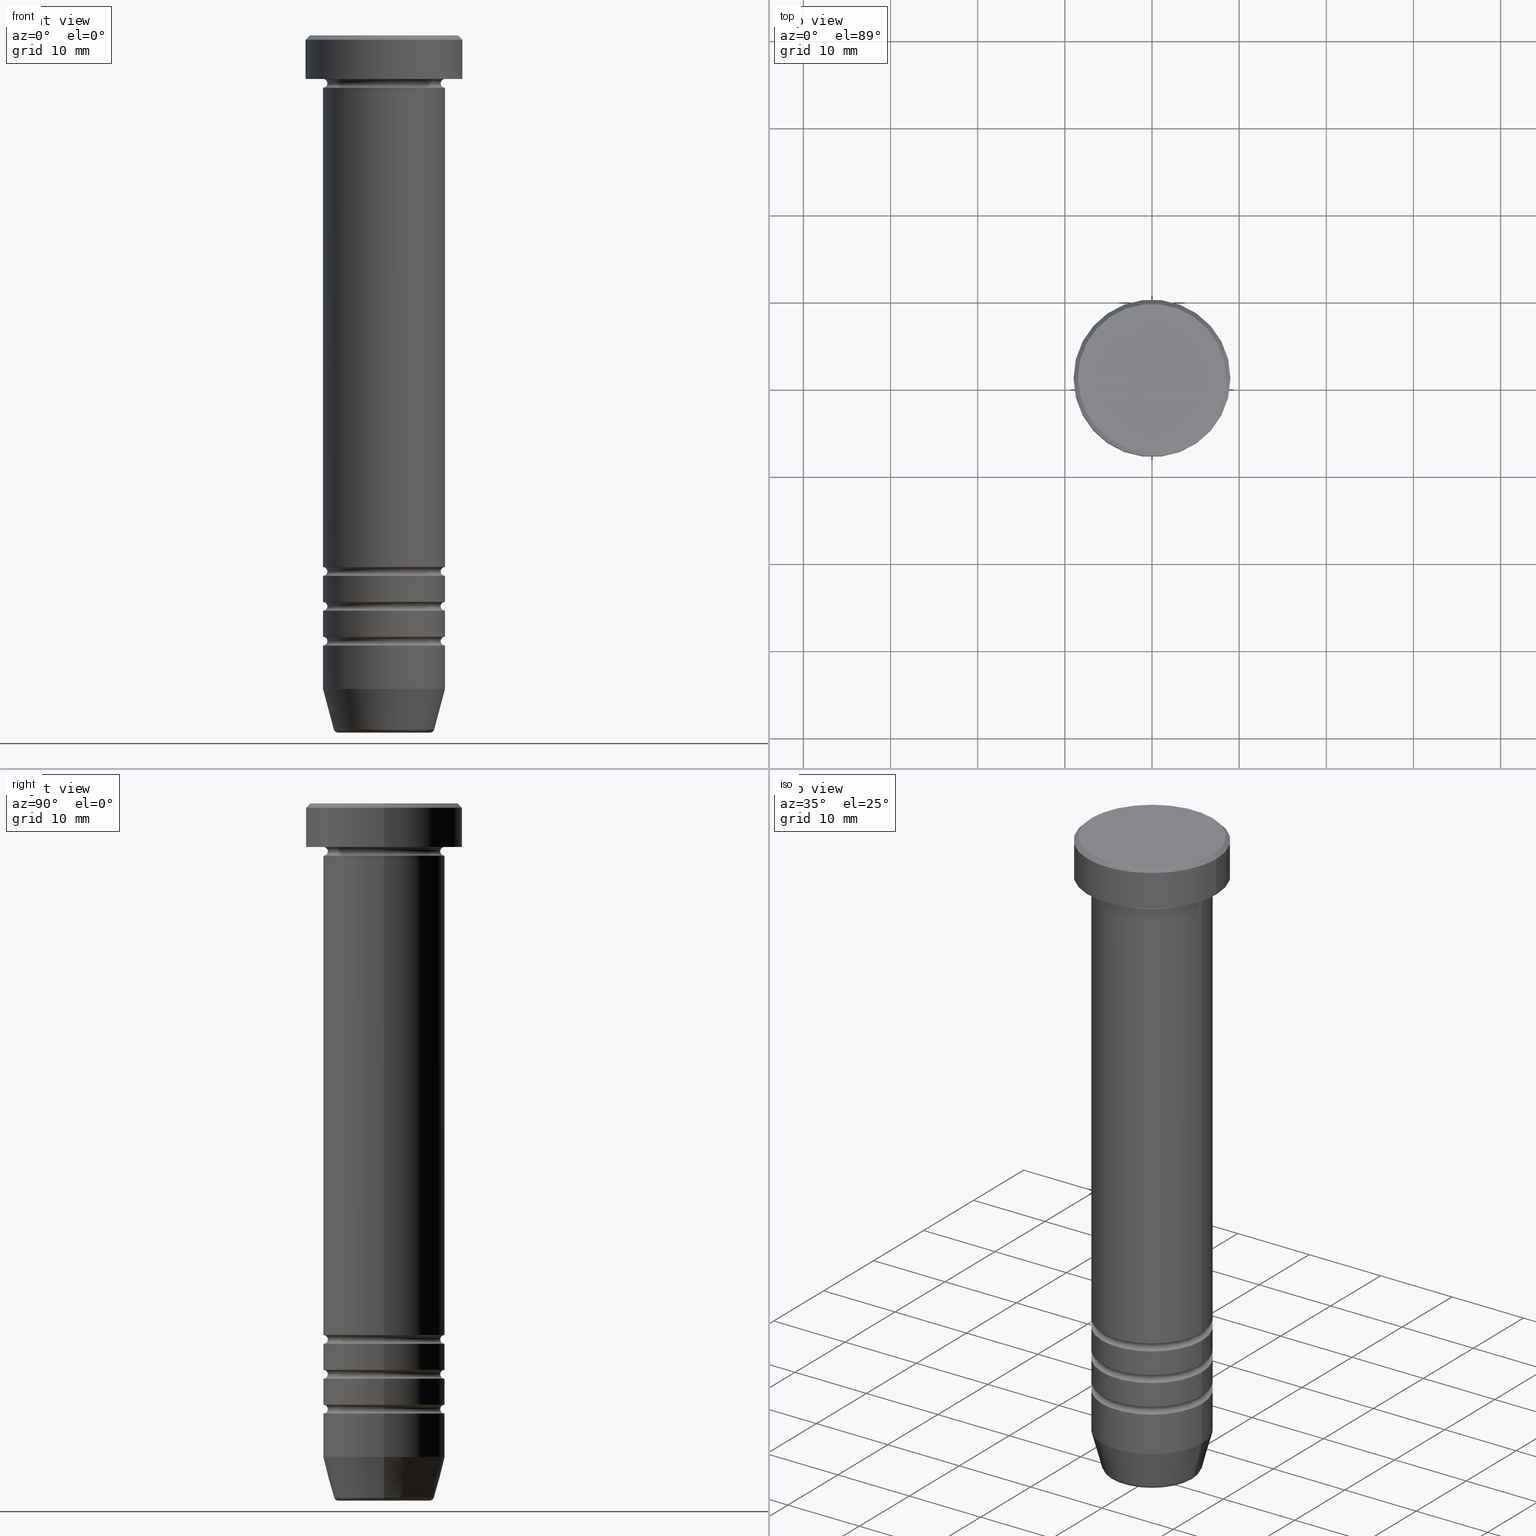
[diagram: canonical four-view strip — front | top / right | iso, engineering-drawing reading convention]
A machine part, canonical four-view strip (front | top / right | iso — engineering-drawing reading convention). The complete STEP part file that produces these views, byte-faithful:
ISO-10303-21;
HEADER;
FILE_DESCRIPTION (( 'STEP AP203' ),
    '1' );
FILE_NAME ('f0a0.STEP',
    '2024-01-02T23:07:01',
    ( '' ),
    ( '' ),
    'SwSTEP 2.0',
    'SolidWorks 2019',
    '' );
FILE_SCHEMA (( 'CONFIG_CONTROL_DESIGN' ));
ENDSEC;

DATA;
#1 = CARTESIAN_POINT ( 'NONE',  ( 0.000000000000000000, 0.000000000000000000, -60.99999999999999289 ) ) ;
#2 = EDGE_LOOP ( 'NONE', ( #511, #228, #222, #41 ) ) ;
#3 = DIRECTION ( 'NONE',  ( -0.000000000000000000, -0.000000000000000000, 1.000000000000000000 ) ) ;
#4 = DIRECTION ( 'NONE',  ( 1.000000000000000000, 0.000000000000000000, 0.000000000000000000 ) ) ;
#5 = ADVANCED_FACE ( 'NONE', ( #261 ), #1052, .F. ) ;
#6 = DIRECTION ( 'NONE',  ( -1.000000000000000000, -1.224646799147351482E-16, 0.000000000000000000 ) ) ;
#7 = ORIENTED_EDGE ( 'NONE', *, *, #515, .T. ) ;
#8 = AXIS2_PLACEMENT_3D ( 'NONE', #178, #15, #735 ) ;
#9 = CIRCLE ( 'NONE', #949, 0.5000000000000004441 ) ;
#10 = LINE ( 'NONE', #997, #271 ) ;
#11 = CARTESIAN_POINT ( 'NONE',  ( -6.499999999999995559, 8.266365894244627431E-16, -69.49999999999997158 ) ) ;
#12 = AXIS2_PLACEMENT_3D ( 'NONE', #25, #83, #181 ) ;
#13 = VECTOR ( 'NONE', #689, 1000.000000000000000 ) ;
#14 = DIRECTION ( 'NONE',  ( 0.000000000000000000, 0.000000000000000000, -1.000000000000000000 ) ) ;
#15 = DIRECTION ( 'NONE',  ( 0.000000000000000000, -0.000000000000000000, 1.000000000000000000 ) ) ;
#16 = DIRECTION ( 'NONE',  ( 1.000000000000000000, 0.000000000000000000, 0.000000000000000000 ) ) ;
#17 = CARTESIAN_POINT ( 'NONE',  ( 6.999999999999995559, 8.572527594031467273E-16, -65.49999999999998579 ) ) ;
#18 = DIRECTION ( 'NONE',  ( -1.000000000000000000, 0.000000000000000000, 0.000000000000000000 ) ) ;
#19 = CARTESIAN_POINT ( 'NONE',  ( 0.000000000000000000, 0.000000000000000000, -65.49999999999998579 ) ) ;
#20 = CARTESIAN_POINT ( 'NONE',  ( 0.000000000000000000, 0.000000000000000000, -6.000000000000001776 ) ) ;
#21 = CARTESIAN_POINT ( 'NONE',  ( -6.999999999999995559, 0.000000000000000000, -65.49999999999998579 ) ) ;
#22 = CARTESIAN_POINT ( 'NONE',  ( 0.000000000000000000, 0.000000000000000000, 0.000000000000000000 ) ) ;
#23 = EDGE_CURVE ( 'NONE', #676, #51, #155, .T. ) ;
#24 = VECTOR ( 'NONE', #114, 1000.000000000000000 ) ;
#25 = CARTESIAN_POINT ( 'NONE',  ( 0.000000000000000000, 0.000000000000000000, 0.000000000000000000 ) ) ;
#26 = FACE_OUTER_BOUND ( 'NONE', #77, .T. ) ;
#27 = AXIS2_PLACEMENT_3D ( 'NONE', #458, #483, #915 ) ;
#28 = AXIS2_PLACEMENT_3D ( 'NONE', #162, #513, #426 ) ;
#29 = CIRCLE ( 'NONE', #158, 9.000000000000000000 ) ;
#30 = AXIS2_PLACEMENT_3D ( 'NONE', #599, #101, #754 ) ;
#31 = DIRECTION ( 'NONE',  ( -0.000000000000000000, -0.000000000000000000, 1.000000000000000000 ) ) ;
#32 = ORIENTED_EDGE ( 'NONE', *, *, #738, .F. ) ;
#33 = DIRECTION ( 'NONE',  ( 1.000000000000000000, 0.000000000000000000, 0.000000000000000000 ) ) ;
#34 = ORIENTED_EDGE ( 'NONE', *, *, #623, .T. ) ;
#35 = CARTESIAN_POINT ( 'NONE',  ( 6.999999999999995559, 8.572527594031467273E-16, -69.49999999999997158 ) ) ;
#36 = EDGE_LOOP ( 'NONE', ( #241, #612 ) ) ;
#37 = FACE_OUTER_BOUND ( 'NONE', #373, .T. ) ;
#38 = EDGE_CURVE ( 'NONE', #532, #235, #981, .T. ) ;
#39 = ADVANCED_FACE ( 'NONE', ( #494 ), #324, .T. ) ;
#40 = CYLINDRICAL_SURFACE ( 'NONE', #898, 6.999999999999999112 ) ;
#41 = ORIENTED_EDGE ( 'NONE', *, *, #310, .F. ) ;
#42 = CARTESIAN_POINT ( 'NONE',  ( 0.000000000000000000, 0.000000000000000000, -69.49999999999997158 ) ) ;
#43 = APPROVAL ( #297, 'NEUR�EN�' ) ;
#44 = VECTOR ( 'NONE', #409, 1000.000000000000000 ) ;
#45 = ORIENTED_EDGE ( 'NONE', *, *, #573, .F. ) ;
#46 = CIRCLE ( 'NONE', #1040, 7.000000000000000000 ) ;
#47 = CARTESIAN_POINT ( 'NONE',  ( -7.000000000000000000, 8.572527594031473190E-16, 0.000000000000000000 ) ) ;
#48 = ORIENTED_EDGE ( 'NONE', *, *, #690, .T. ) ;
#49 = FACE_OUTER_BOUND ( 'NONE', #693, .T. ) ;
#50 = DIRECTION ( 'NONE',  ( -0.000000000000000000, -0.000000000000000000, 1.000000000000000000 ) ) ;
#51 = VERTEX_POINT ( 'NONE', #661 ) ;
#52 = DIRECTION ( 'NONE',  ( 0.000000000000000000, 0.000000000000000000, -1.000000000000000000 ) ) ;
#53 = DIRECTION ( 'NONE',  ( 0.000000000000000000, 0.000000000000000000, -1.000000000000000000 ) ) ;
#54 = CARTESIAN_POINT ( 'NONE',  ( -7.000000000000000000, 8.572527594031473190E-16, -20.00000000000000000 ) ) ;
#55 = ORIENTED_EDGE ( 'NONE', *, *, #345, .T. ) ;
#56 = ADVANCED_FACE ( 'NONE', ( #490 ), #1019, .F. ) ;
#57 = DIRECTION ( 'NONE',  ( 1.000000000000000000, 0.000000000000000000, 0.000000000000000000 ) ) ;
#58 = VECTOR ( 'NONE', #31, 1000.000000000000000 ) ;
#59 = VECTOR ( 'NONE', #92, 1000.000000000000000 ) ;
#60 = DIRECTION ( 'NONE',  ( 1.000000000000000000, 0.000000000000000000, 0.000000000000000000 ) ) ;
#61 = AXIS2_PLACEMENT_3D ( 'NONE', #616, #694, #1018 ) ;
#62 = VERTEX_POINT ( 'NONE', #93 ) ;
#63 = DIRECTION ( 'NONE',  ( -1.000000000000000000, 0.000000000000000000, 0.000000000000000000 ) ) ;
#64 = EDGE_LOOP ( 'NONE', ( #1032, #939 ) ) ;
#65 = DIRECTION ( 'NONE',  ( 0.000000000000000000, -1.000000000000000000, 0.000000000000000000 ) ) ;
#66 = MANIFOLD_SOLID_BREP ( 'Zaoblit5', #472 ) ;
#67 = DIRECTION ( 'NONE',  ( 0.000000000000000000, 0.000000000000000000, -1.000000000000000000 ) ) ;
#68 = ORIENTED_EDGE ( 'NONE', *, *, #23, .F. ) ;
#69 = PERSON_AND_ORGANIZATION ( #1058, #936 ) ;
#70 = EDGE_CURVE ( 'NONE', #747, #354, #286, .T. ) ;
#71 = DIRECTION ( 'NONE',  ( 1.000000000000000000, 0.000000000000000000, 0.000000000000000000 ) ) ;
#72 = ORIENTED_EDGE ( 'NONE', *, *, #134, .T. ) ;
#73 = VERTEX_POINT ( 'NONE', #169 ) ;
#74 = FACE_OUTER_BOUND ( 'NONE', #334, .T. ) ;
#75 = AXIS2_PLACEMENT_3D ( 'NONE', #896, #1000, #579 ) ;
#76 = TOROIDAL_SURFACE ( 'NONE', #248, 6.999999999999995559, 0.5000000000000000000 ) ;
#77 = EDGE_LOOP ( 'NONE', ( #1055, #34, #636, #68 ) ) ;
#78 = SECURITY_CLASSIFICATION_LEVEL ( 'unclassified' ) ;
#79 = CIRCLE ( 'NONE', #887, 6.999999999999998224 ) ;
#80 = AXIS2_PLACEMENT_3D ( 'NONE', #940, #470, #122 ) ;
#81 = CARTESIAN_POINT ( 'NONE',  ( -5.276590543854901227, 6.461959719943096545E-16, -79.49999999999998579 ) ) ;
#82 = DATE_TIME_ROLE ( 'classification_date' ) ;
#83 = DIRECTION ( 'NONE',  ( -0.000000000000000000, -0.000000000000000000, 1.000000000000000000 ) ) ;
#84 = LINE ( 'NONE', #395, #44 ) ;
#85 = EDGE_CURVE ( 'NONE', #367, #724, #808, .T. ) ;
#86 = EDGE_CURVE ( 'NONE', #284, #235, #88, .T. ) ;
#87 = ORIENTED_EDGE ( 'NONE', *, *, #766, .T. ) ;
#88 = LINE ( 'NONE', #412, #847 ) ;
#89 = CARTESIAN_POINT ( 'NONE',  ( -9.000000000000000000, 1.102182119232617714E-15, 0.000000000000000000 ) ) ;
#90 = DIRECTION ( 'NONE',  ( 1.000000000000000000, 0.000000000000000000, 0.000000000000000000 ) ) ;
#91 = EDGE_CURVE ( 'NONE', #979, #517, #727, .T. ) ;
#92 = DIRECTION ( 'NONE',  ( -0.7071067811865450192, 0.000000000000000000, -0.7071067811865500152 ) ) ;
#93 = CARTESIAN_POINT ( 'NONE',  ( 9.000000000000000000, 0.000000000000000000, -5.000000000000000000 ) ) ;
#94 = DIRECTION ( 'NONE',  ( -0.000000000000000000, -0.000000000000000000, 1.000000000000000000 ) ) ;
#95 = CARTESIAN_POINT ( 'NONE',  ( -5.276590543854901227, 6.757689212787763943E-16, -79.99999999999998579 ) ) ;
#96 = AXIS2_PLACEMENT_3D ( 'NONE', #190, #835, #264 ) ;
#97 = DIRECTION ( 'NONE',  ( -1.000000000000000000, 0.000000000000000000, 0.000000000000000000 ) ) ;
#98 = FACE_OUTER_BOUND ( 'NONE', #934, .T. ) ;
#99 = EDGE_LOOP ( 'NONE', ( #191, #369, #308, #467 ) ) ;
#100 = CARTESIAN_POINT ( 'NONE',  ( -7.000000000000000000, 8.572527594031473190E-16, 0.000000000000000000 ) ) ;
#101 = DIRECTION ( 'NONE',  ( -0.000000000000000000, -0.000000000000000000, 1.000000000000000000 ) ) ;
#102 = ADVANCED_FACE ( 'NONE', ( #98 ), #810, .F. ) ;
#103 = DIRECTION ( 'NONE',  ( -0.000000000000000000, -0.000000000000000000, 1.000000000000000000 ) ) ;
#104 = DIRECTION ( 'NONE',  ( -1.000000000000000000, 0.000000000000000000, -0.000000000000000000 ) ) ;
#105 = DIRECTION ( 'NONE',  ( -0.000000000000000000, -0.000000000000000000, 1.000000000000000000 ) ) ;
#106 = EDGE_CURVE ( 'NONE', #153, #316, #752, .T. ) ;
#107 = CARTESIAN_POINT ( 'NONE',  ( 0.000000000000000000, 0.000000000000000000, -65.49999999999998579 ) ) ;
#108 = VERTEX_POINT ( 'NONE', #527 ) ;
#109 = DIRECTION ( 'NONE',  ( 1.000000000000000000, 0.000000000000000000, 0.000000000000000000 ) ) ;
#110 = TOROIDAL_SURFACE ( 'NONE', #640, 6.999999999999995559, 0.5000000000000000000 ) ;
#111 = CIRCLE ( 'NONE', #920, 5.759553456999433330 ) ;
#112 = CIRCLE ( 'NONE', #508, 6.499999999999995559 ) ;
#113 = ORIENTED_EDGE ( 'NONE', *, *, #559, .F. ) ;
#114 = DIRECTION ( 'NONE',  ( 0.7071067811865450192, 8.659560562354902043E-17, -0.7071067811865500152 ) ) ;
#115 = ORIENTED_EDGE ( 'NONE', *, *, #1042, .F. ) ;
#116 = ORIENTED_EDGE ( 'NONE', *, *, #578, .F. ) ;
#117 = DIRECTION ( 'NONE',  ( -1.000000000000000000, -1.224646799147351482E-16, 0.000000000000000000 ) ) ;
#118 = ADVANCED_FACE ( 'NONE', ( #207 ), #941, .T. ) ;
#119 = EDGE_CURVE ( 'NONE', #153, #391, #657, .T. ) ;
#120 = DIRECTION ( 'NONE',  ( 1.000000000000000000, 0.000000000000000000, 0.000000000000000000 ) ) ;
#121 = ORIENTED_EDGE ( 'NONE', *, *, #881, .F. ) ;
#122 = DIRECTION ( 'NONE',  ( 1.000000000000000000, 0.000000000000000000, 0.000000000000000000 ) ) ;
#123 = CC_DESIGN_DATE_AND_TIME_ASSIGNMENT ( #209, #863, ( #151 ) ) ;
#124 = CARTESIAN_POINT ( 'NONE',  ( 0.000000000000000000, 0.000000000000000000, -64.99999999999998579 ) ) ;
#125 = ORIENTED_EDGE ( 'NONE', *, *, #881, .T. ) ;
#126 = ORIENTED_EDGE ( 'NONE', *, *, #958, .F. ) ;
#127 = CYLINDRICAL_SURFACE ( 'NONE', #320, 7.000000000000000000 ) ;
#128 = AXIS2_PLACEMENT_3D ( 'NONE', #107, #375, #512 ) ;
#129 = AXIS2_PLACEMENT_3D ( 'NONE', #737, #53, #475 ) ;
#130 = AXIS2_PLACEMENT_3D ( 'NONE', #17, #827, #117 ) ;
#131 = LINE ( 'NONE', #504, #59 ) ;
#132 = ORIENTED_EDGE ( 'NONE', *, *, #751, .F. ) ;
#133 = CYLINDRICAL_SURFACE ( 'NONE', #744, 7.000000000000000000 ) ;
#134 = EDGE_CURVE ( 'NONE', #367, #549, #677, .T. ) ;
#135 = PRODUCT_DEFINITION_SHAPE ( 'NONE', 'NONE',  #151 ) ;
#136 = DIRECTION ( 'NONE',  ( -1.000000000000000000, 1.224646799147353454E-16, 0.000000000000000000 ) ) ;
#137 = ORIENTED_EDGE ( 'NONE', *, *, #91, .T. ) ;
#138 = DIRECTION ( 'NONE',  ( 0.000000000000000000, 0.000000000000000000, -1.000000000000000000 ) ) ;
#139 = CARTESIAN_POINT ( 'NONE',  ( -9.000000000000000000, 1.102182119232617714E-15, -0.5000000000000023315 ) ) ;
#140 = EDGE_LOOP ( 'NONE', ( #45, #774, #87, #121 ) ) ;
#141 = APPLICATION_PROTOCOL_DEFINITION ( 'international standard', 'config_control_design', 1994, #638 ) ;
#142 = CARTESIAN_POINT ( 'NONE',  ( 0.000000000000000000, 0.000000000000000000, 0.000000000000000000 ) ) ;
#143 = AXIS2_PLACEMENT_3D ( 'NONE', #910, #507, #250 ) ;
#144 = CARTESIAN_POINT ( 'NONE',  ( -6.999999999999995559, 8.572527594031467273E-16, -61.49999999999999289 ) ) ;
#145 = CIRCLE ( 'NONE', #216, 0.5000000000000004441 ) ;
#146 = SECURITY_CLASSIFICATION ( '', '', #78 ) ;
#147 = ORIENTED_EDGE ( 'NONE', *, *, #607, .F. ) ;
#148 = ADVANCED_FACE ( 'NONE', ( #1015 ), #446, .T. ) ;
#149 = CARTESIAN_POINT ( 'NONE',  ( 0.000000000000000000, 3.673940397442057600E-15, -79.99999999999998579 ) ) ;
#150 = EDGE_LOOP ( 'NONE', ( #839, #886, #393, #769 ) ) ;
#151 = PRODUCT_DEFINITION ( 'NEZN�M�', '', #217, #836 ) ;
#152 = CARTESIAN_POINT ( 'NONE',  ( 0.000000000000000000, 0.000000000000000000, -61.49999999999999289 ) ) ;
#153 = VERTEX_POINT ( 'NONE', #441 ) ;
#154 = APPROVAL_ROLE ( '' ) ;
#155 = CIRCLE ( 'NONE', #639, 7.000000000000000000 ) ;
#156 = DIRECTION ( 'NONE',  ( 1.000000000000000000, 0.000000000000000000, 0.000000000000000000 ) ) ;
#157 = AXIS2_PLACEMENT_3D ( 'NONE', #418, #891, #6 ) ;
#158 = AXIS2_PLACEMENT_3D ( 'NONE', #718, #824, #57 ) ;
#159 = CARTESIAN_POINT ( 'NONE',  ( 0.000000000000000000, 0.000000000000000000, -61.99999999999999289 ) ) ;
#160 = AXIS2_PLACEMENT_3D ( 'NONE', #502, #855, #33 ) ;
#161 = EDGE_CURVE ( 'NONE', #683, #777, #350, .T. ) ;
#162 = CARTESIAN_POINT ( 'NONE',  ( 0.000000000000000000, 0.000000000000000000, 0.000000000000000000 ) ) ;
#163 = CARTESIAN_POINT ( 'NONE',  ( 6.999999999999995559, 0.000000000000000000, -61.49999999999999289 ) ) ;
#164 = CC_DESIGN_APPROVAL ( #43, ( #151 ) ) ;
#165 = EDGE_LOOP ( 'NONE', ( #193, #692, #132, #713 ) ) ;
#166 = CARTESIAN_POINT ( 'NONE',  ( 0.000000000000000000, 0.000000000000000000, -79.49999999999998579 ) ) ;
#167 = VERTEX_POINT ( 'NONE', #773 ) ;
#168 = ADVANCED_FACE ( 'NONE', ( #755 ), #40, .T. ) ;
#169 = CARTESIAN_POINT ( 'NONE',  ( 6.500000000000000888, 0.000000000000000000, -5.500000000000001776 ) ) ;
#170 = CARTESIAN_POINT ( 'NONE',  ( 7.000000000000000888, 8.572527594031474176E-16, -5.500000000000001776 ) ) ;
#171 = CARTESIAN_POINT ( 'NONE',  ( 0.000000000000000000, 0.000000000000000000, -65.99999999999998579 ) ) ;
#172 = CARTESIAN_POINT ( 'NONE',  ( 7.000000000000000000, 0.000000000000000000, -74.99999999999998579 ) ) ;
#173 = ORIENTED_EDGE ( 'NONE', *, *, #196, .F. ) ;
#174 = ORIENTED_EDGE ( 'NONE', *, *, #575, .T. ) ;
#175 = CARTESIAN_POINT ( 'NONE',  ( 0.000000000000000000, 0.000000000000000000, -74.99999999999998579 ) ) ;
#176 = DIRECTION ( 'NONE',  ( 1.000000000000000000, 0.000000000000000000, 0.000000000000000000 ) ) ;
#177 = DIRECTION ( 'NONE',  ( -0.000000000000000000, -0.000000000000000000, 1.000000000000000000 ) ) ;
#178 = CARTESIAN_POINT ( 'NONE',  ( 0.000000000000000000, 0.000000000000000000, 0.000000000000000000 ) ) ;
#179 = AXIS2_PLACEMENT_3D ( 'NONE', #159, #976, #1060 ) ;
#180 = CIRCLE ( 'NONE', #157, 0.5000000000000004441 ) ;
#181 = DIRECTION ( 'NONE',  ( 1.000000000000000000, 0.000000000000000000, 0.000000000000000000 ) ) ;
#182 = FACE_OUTER_BOUND ( 'NONE', #856, .T. ) ;
#183 = CIRCLE ( 'NONE', #621, 7.000000000000000000 ) ;
#184 = UNCERTAINTY_MEASURE_WITH_UNIT (LENGTH_MEASURE( 1.000000000000000082E-05 ), #708, 'distance_accuracy_value', 'NONE');
#185 = EDGE_CURVE ( 'NONE', #517, #879, #861, .T. ) ;
#186 = AXIS2_PLACEMENT_3D ( 'NONE', #1013, #194, #109 ) ;
#187 = DIRECTION ( 'NONE',  ( -0.000000000000000000, -0.000000000000000000, 1.000000000000000000 ) ) ;
#188 = ORIENTED_EDGE ( 'NONE', *, *, #515, .F. ) ;
#189 = CARTESIAN_POINT ( 'NONE',  ( 0.000000000000000000, 7.000000000000000000, -20.00000000000000000 ) ) ;
#190 = CARTESIAN_POINT ( 'NONE',  ( 0.000000000000000000, 0.000000000000000000, 0.000000000000000000 ) ) ;
#191 = ORIENTED_EDGE ( 'NONE', *, *, #765, .T. ) ;
#192 = DIRECTION ( 'NONE',  ( 1.000000000000000000, 0.000000000000000000, 0.000000000000000000 ) ) ;
#193 = ORIENTED_EDGE ( 'NONE', *, *, #575, .F. ) ;
#194 = DIRECTION ( 'NONE',  ( -0.000000000000000000, -0.000000000000000000, 1.000000000000000000 ) ) ;
#195 = CARTESIAN_POINT ( 'NONE',  ( -6.999999999999996447, 8.572527594031468259E-16, 0.000000000000000000 ) ) ;
#196 = EDGE_CURVE ( 'NONE', #51, #561, #197, .T. ) ;
#197 = CIRCLE ( 'NONE', #230, 0.5000000000000004441 ) ;
#198 = VERTEX_POINT ( 'NONE', #285 ) ;
#199 = CARTESIAN_POINT ( 'NONE',  ( 0.000000000000000000, 0.000000000000000000, -69.99999999999998579 ) ) ;
#200 = AXIS2_PLACEMENT_3D ( 'NONE', #425, #750, #156 ) ;
#201 = EDGE_CURVE ( 'NONE', #448, #956, #368, .T. ) ;
#202 = AXIS2_PLACEMENT_3D ( 'NONE', #460, #212, #790 ) ;
#203 = ORIENTED_EDGE ( 'NONE', *, *, #798, .T. ) ;
#204 = CARTESIAN_POINT ( 'NONE',  ( 0.000000000000000000, 0.000000000000000000, -65.99999999999998579 ) ) ;
#205 = ORIENTED_EDGE ( 'NONE', *, *, #955, .F. ) ;
#206 = DIRECTION ( 'NONE',  ( 1.000000000000000000, 0.000000000000000000, 0.000000000000000000 ) ) ;
#207 = FACE_OUTER_BOUND ( 'NONE', #360, .T. ) ;
#208 = ORIENTED_EDGE ( 'NONE', *, *, #310, .T. ) ;
#209 = DATE_AND_TIME ( #943, #476 ) ;
#210 = DIRECTION ( 'NONE',  ( 0.000000000000000000, 0.000000000000000000, -1.000000000000000000 ) ) ;
#211 = EDGE_LOOP ( 'NONE', ( #447, #874 ) ) ;
#212 = DIRECTION ( 'NONE',  ( -0.000000000000000000, -0.000000000000000000, 1.000000000000000000 ) ) ;
#213 = EDGE_CURVE ( 'NONE', #284, #927, #606, .T. ) ;
#214 = TOROIDAL_SURFACE ( 'NONE', #522, 7.000000000000000888, 0.5000000000000000000 ) ;
#215 = DIRECTION ( 'NONE',  ( 0.000000000000000000, -1.000000000000000000, 0.000000000000000000 ) ) ;
#216 = AXIS2_PLACEMENT_3D ( 'NONE', #163, #908, #138 ) ;
#217 = PRODUCT_DEFINITION_FORMATION_WITH_SPECIFIED_SOURCE ( 'LIBOVOLN�', '', #993, .NOT_KNOWN. ) ;
#218 = DIRECTION ( 'NONE',  ( -0.000000000000000000, -1.000000000000000000, -0.000000000000000000 ) ) ;
#219 = ORIENTED_EDGE ( 'NONE', *, *, #894, .F. ) ;
#220 = FACE_OUTER_BOUND ( 'NONE', #99, .T. ) ;
#221 = CARTESIAN_POINT ( 'NONE',  ( 7.000000000000000000, 0.000000000000000000, 0.000000000000000000 ) ) ;
#222 = ORIENTED_EDGE ( 'NONE', *, *, #38, .F. ) ;
#223 = DIRECTION ( 'NONE',  ( 1.000000000000000000, 0.000000000000000000, 0.000000000000000000 ) ) ;
#224 = CARTESIAN_POINT ( 'NONE',  ( 0.000000000000000000, 0.000000000000000000, -5.000000000000000000 ) ) ;
#225 = ADVANCED_FACE ( 'NONE', ( #605 ), #759, .F. ) ;
#226 = EDGE_LOOP ( 'NONE', ( #481, #1045, #794, #1029 ) ) ;
#227 = ADVANCED_FACE ( 'NONE', ( #614 ), #531, .T. ) ;
#228 = ORIENTED_EDGE ( 'NONE', *, *, #86, .T. ) ;
#229 = CARTESIAN_POINT ( 'NONE',  ( 0.000000000000000000, 0.000000000000000000, 0.000000000000000000 ) ) ;
#230 = AXIS2_PLACEMENT_3D ( 'NONE', #35, #364, #686 ) ;
#231 = AXIS2_PLACEMENT_3D ( 'NONE', #307, #378, #60 ) ;
#232 = DIRECTION ( 'NONE',  ( 1.000000000000000000, 0.000000000000000000, 0.000000000000000000 ) ) ;
#233 = AXIS2_PLACEMENT_3D ( 'NONE', #408, #509, #736 ) ;
#234 = CONICAL_SURFACE ( 'NONE', #439, 5.660254037844381081, 0.2617993877991502405 ) ;
#235 = VERTEX_POINT ( 'NONE', #778 ) ;
#236 = CC_DESIGN_PERSON_AND_ORGANIZATION_ASSIGNMENT ( #325, #392, ( #217 ) ) ;
#237 = CARTESIAN_POINT ( 'NONE',  ( 7.000000000000000000, 0.000000000000000000, -61.99999999999999289 ) ) ;
#238 = EDGE_LOOP ( 'NONE', ( #411, #627, #208, #523 ) ) ;
#239 = PERSON_AND_ORGANIZATION_ROLE ( 'design_supplier' ) ;
#240 = LINE ( 'NONE', #814, #658 ) ;
#241 = ORIENTED_EDGE ( 'NONE', *, *, #312, .F. ) ;
#242 = PERSON_AND_ORGANIZATION ( #1058, #936 ) ;
#243 = DIRECTION ( 'NONE',  ( 1.000000000000000000, 0.000000000000000000, 0.000000000000000000 ) ) ;
#244 = EDGE_CURVE ( 'NONE', #956, #676, #601, .T. ) ;
#245 = AXIS2_PLACEMENT_3D ( 'NONE', #295, #851, #520 ) ;
#246 = DIRECTION ( 'NONE',  ( -0.000000000000000000, -0.000000000000000000, 1.000000000000000000 ) ) ;
#247 = ORIENTED_EDGE ( 'NONE', *, *, #38, .T. ) ;
#248 = AXIS2_PLACEMENT_3D ( 'NONE', #664, #739, #1059 ) ;
#249 = CONICAL_SURFACE ( 'NONE', #421, 8.500000000000000000, 0.7853981633974447263 ) ;
#250 = DIRECTION ( 'NONE',  ( -1.000000000000000000, 0.000000000000000000, 0.000000000000000000 ) ) ;
#251 = DIRECTION ( 'NONE',  ( -0.000000000000000000, -0.000000000000000000, 1.000000000000000000 ) ) ;
#252 = DIRECTION ( 'NONE',  ( 0.000000000000000000, 0.000000000000000000, -1.000000000000000000 ) ) ;
#253 = CC_DESIGN_PERSON_AND_ORGANIZATION_ASSIGNMENT ( #69, #239, ( #217 ) ) ;
#254 = CARTESIAN_POINT ( 'NONE',  ( 0.000000000000000000, 0.000000000000000000, -5.000000000000000888 ) ) ;
#255 = CARTESIAN_POINT ( 'NONE',  ( 0.000000000000000000, 0.000000000000000000, 0.000000000000000000 ) ) ;
#256 = ORIENTED_EDGE ( 'NONE', *, *, #955, .T. ) ;
#257 = EDGE_LOOP ( 'NONE', ( #1049, #428, #72, #313 ) ) ;
#258 = LINE ( 'NONE', #983, #589 ) ;
#259 = DIRECTION ( 'NONE',  ( 0.000000000000000000, 0.000000000000000000, -1.000000000000000000 ) ) ;
#260 = FACE_OUTER_BOUND ( 'NONE', #946, .T. ) ;
#261 = FACE_OUTER_BOUND ( 'NONE', #696, .T. ) ;
#262 = EDGE_CURVE ( 'NONE', #198, #484, #848, .T. ) ;
#263 = CARTESIAN_POINT ( 'NONE',  ( -7.000000000000000000, 8.572527594031473190E-16, -69.99999999999998579 ) ) ;
#264 = DIRECTION ( 'NONE',  ( 1.000000000000000000, 0.000000000000000000, 0.000000000000000000 ) ) ;
#265 = VERTEX_POINT ( 'NONE', #838 ) ;
#266 = CARTESIAN_POINT ( 'NONE',  ( 0.000000000000000000, 0.000000000000000000, -5.500000000000001776 ) ) ;
#267 = ORIENTED_EDGE ( 'NONE', *, *, #530, .T. ) ;
#268 = AXIS2_PLACEMENT_3D ( 'NONE', #873, #315, #382 ) ;
#269 = DIRECTION ( 'NONE',  ( -0.000000000000000000, -0.000000000000000000, 1.000000000000000000 ) ) ;
#270 = DIRECTION ( 'NONE',  ( 1.000000000000000000, 0.000000000000000000, 0.000000000000000000 ) ) ;
#271 = VECTOR ( 'NONE', #580, 1000.000000000000114 ) ;
#272 = CIRCLE ( 'NONE', #61, 6.499999999999995559 ) ;
#273 = ORIENTED_EDGE ( 'NONE', *, *, #544, .T. ) ;
#274 = CARTESIAN_POINT ( 'NONE',  ( 0.000000000000000000, 0.000000000000000000, -60.99999999999999289 ) ) ;
#275 = EDGE_LOOP ( 'NONE', ( #203, #478, #326, #971 ) ) ;
#276 = ORIENTED_EDGE ( 'NONE', *, *, #465, .T. ) ;
#277 = DIRECTION ( 'NONE',  ( 1.000000000000000000, 0.000000000000000000, 0.000000000000000000 ) ) ;
#278 = ADVANCED_FACE ( 'NONE', ( #429, #433 ), #762, .T. ) ;
#279 = DIRECTION ( 'NONE',  ( 1.000000000000000000, 0.000000000000000000, 0.000000000000000000 ) ) ;
#280 = EDGE_CURVE ( 'NONE', #962, #442, #289, .T. ) ;
#281 = ORIENTED_EDGE ( 'NONE', *, *, #989, .T. ) ;
#282 = CARTESIAN_POINT ( 'NONE',  ( 0.000000000000000000, 0.000000000000000000, -79.62940952255125637 ) ) ;
#283 = EDGE_CURVE ( 'NONE', #879, #300, #948, .T. ) ;
#284 = VERTEX_POINT ( 'NONE', #311 ) ;
#285 = CARTESIAN_POINT ( 'NONE',  ( 6.499999999999995559, 0.000000000000000000, -65.49999999999998579 ) ) ;
#286 = CIRCLE ( 'NONE', #586, 0.5000000000000004441 ) ;
#287 = ORIENTED_EDGE ( 'NONE', *, *, #719, .F. ) ;
#288 = DIRECTION ( 'NONE',  ( -0.000000000000000000, -0.000000000000000000, 1.000000000000000000 ) ) ;
#289 = CIRCLE ( 'NONE', #619, 6.999999999999992895 ) ;
#290 = AXIS2_PLACEMENT_3D ( 'NONE', #545, #791, #223 ) ;
#291 = APPROVAL_PERSON_ORGANIZATION ( #242, #503, #154 ) ;
#292 = CARTESIAN_POINT ( 'NONE',  ( 0.000000000000000000, 0.000000000000000000, -69.49999999999997158 ) ) ;
#293 = ORIENTED_EDGE ( 'NONE', *, *, #495, .T. ) ;
#294 = PERSON_AND_ORGANIZATION_ROLE ( 'creator' ) ;
#295 = CARTESIAN_POINT ( 'NONE',  ( 0.000000000000000000, 0.000000000000000000, 0.000000000000000000 ) ) ;
#296 = EDGE_LOOP ( 'NONE', ( #394, #281, #341, #644 ) ) ;
#297 = APPROVAL_STATUS ( 'not_yet_approved' ) ;
#298 = EDGE_CURVE ( 'NONE', #747, #996, #779, .T. ) ;
#299 = CARTESIAN_POINT ( 'NONE',  ( 5.759553456999433330, 0.000000000000000000, -79.62940952255125637 ) ) ;
#300 = VERTEX_POINT ( 'NONE', #139 ) ;
#301 = DIRECTION ( 'NONE',  ( 0.000000000000000000, 0.000000000000000000, -1.000000000000000000 ) ) ;
#302 = EDGE_CURVE ( 'NONE', #549, #265, #698, .T. ) ;
#303 = AXIS2_PLACEMENT_3D ( 'NONE', #292, #842, #937 ) ;
#304 = CIRCLE ( 'NONE', #830, 7.000000000000000000 ) ;
#305 = CARTESIAN_POINT ( 'NONE',  ( 0.000000000000000000, 0.000000000000000000, 0.000000000000000000 ) ) ;
#306 = CIRCLE ( 'NONE', #526, 7.000000000000000000 ) ;
#307 = CARTESIAN_POINT ( 'NONE',  ( 0.000000000000000000, 0.000000000000000000, -0.5000000000000023315 ) ) ;
#308 = ORIENTED_EDGE ( 'NONE', *, *, #201, .F. ) ;
#309 = DIRECTION ( 'NONE',  ( 1.000000000000000000, 0.000000000000000000, 0.000000000000000000 ) ) ;
#310 = EDGE_CURVE ( 'NONE', #927, #532, #961, .T. ) ;
#311 = CARTESIAN_POINT ( 'NONE',  ( -6.999999999999998224, 8.572527594031471218E-16, -64.99999999999998579 ) ) ;
#312 = EDGE_CURVE ( 'NONE', #62, #928, #885, .T. ) ;
#313 = ORIENTED_EDGE ( 'NONE', *, *, #495, .F. ) ;
#314 = FACE_OUTER_BOUND ( 'NONE', #552, .T. ) ;
#315 = DIRECTION ( 'NONE',  ( -0.000000000000000000, -0.000000000000000000, 1.000000000000000000 ) ) ;
#316 = VERTEX_POINT ( 'NONE', #1048 ) ;
#317 = AXIS2_PLACEMENT_3D ( 'NONE', #631, #1044, #462 ) ;
#318 = DIRECTION ( 'NONE',  ( -0.000000000000000000, -0.000000000000000000, 1.000000000000000000 ) ) ;
#319 = CIRCLE ( 'NONE', #729, 0.5000000000000004441 ) ;
#320 = AXIS2_PLACEMENT_3D ( 'NONE', #543, #288, #377 ) ;
#321 = VERTEX_POINT ( 'NONE', #54 ) ;
#322 = COORDINATED_UNIVERSAL_TIME_OFFSET ( 1, 0, .AHEAD. ) ;
#323 = ORIENTED_EDGE ( 'NONE', *, *, #465, .F. ) ;
#324 = PLANE ( 'NONE',  #8 ) ;
#325 = PERSON_AND_ORGANIZATION ( #1058, #936 ) ;
#326 = ORIENTED_EDGE ( 'NONE', *, *, #690, .F. ) ;
#327 = ADVANCED_FACE ( 'NONE', ( #1038 ), #966, .F. ) ;
#328 = ORIENTED_EDGE ( 'NONE', *, *, #911, .T. ) ;
#329 = DIRECTION ( 'NONE',  ( 1.000000000000000000, 0.000000000000000000, 0.000000000000000000 ) ) ;
#330 = DIRECTION ( 'NONE',  ( 0.000000000000000000, 0.000000000000000000, -1.000000000000000000 ) ) ;
#331 = DIRECTION ( 'NONE',  ( -0.000000000000000000, -1.000000000000000000, -0.000000000000000000 ) ) ;
#332 = AXIS2_PLACEMENT_3D ( 'NONE', #152, #344, #975 ) ;
#333 = AXIS2_PLACEMENT_3D ( 'NONE', #175, #3, #243 ) ;
#334 = EDGE_LOOP ( 'NONE', ( #598, #459, #862, #890 ) ) ;
#335 = EDGE_LOOP ( 'NONE', ( #666, #293 ) ) ;
#336 = CIRCLE ( 'NONE', #130, 0.5000000000000004441 ) ;
#337 = DIRECTION ( 'NONE',  ( -1.224646799147353207E-16, 1.000000000000000000, 0.000000000000000000 ) ) ;
#338 = DIRECTION ( 'NONE',  ( 1.000000000000000000, 0.000000000000000000, 0.000000000000000000 ) ) ;
#339 = EDGE_CURVE ( 'NONE', #1017, #108, #954, .T. ) ;
#340 = DIRECTION ( 'NONE',  ( 0.000000000000000000, 0.000000000000000000, -1.000000000000000000 ) ) ;
#341 = ORIENTED_EDGE ( 'NONE', *, *, #595, .T. ) ;
#342 = LINE ( 'NONE', #900, #902 ) ;
#343 = DIRECTION ( 'NONE',  ( 1.000000000000000000, 0.000000000000000000, 0.000000000000000000 ) ) ;
#344 = DIRECTION ( 'NONE',  ( 0.000000000000000000, 0.000000000000000000, -1.000000000000000000 ) ) ;
#345 = EDGE_CURVE ( 'NONE', #484, #198, #473, .T. ) ;
#346 = DIRECTION ( 'NONE',  ( 0.000000000000000000, 0.000000000000000000, -1.000000000000000000 ) ) ;
#347 = CARTESIAN_POINT ( 'NONE',  ( 0.000000000000000000, 0.000000000000000000, -68.99999999999997158 ) ) ;
#348 = DIRECTION ( 'NONE',  ( 0.000000000000000000, 0.000000000000000000, -1.000000000000000000 ) ) ;
#349 = ORIENTED_EDGE ( 'NONE', *, *, #783, .T. ) ;
#350 = CIRCLE ( 'NONE', #553, 7.000000000000000000 ) ;
#351 = DIRECTION ( 'NONE',  ( -0.000000000000000000, -0.000000000000000000, 1.000000000000000000 ) ) ;
#352 = AXIS2_PLACEMENT_3D ( 'NONE', #964, #1030, #784 ) ;
#353 = AXIS2_PLACEMENT_3D ( 'NONE', #81, #560, #488 ) ;
#354 = VERTEX_POINT ( 'NONE', #299 ) ;
#355 = CARTESIAN_POINT ( 'NONE',  ( 0.000000000000000000, 0.000000000000000000, -79.99999999999998579 ) ) ;
#356 = VECTOR ( 'NONE', #424, 1000.000000000000000 ) ;
#357 = CIRCLE ( 'NONE', #761, 6.499999999999995559 ) ;
#358 = EDGE_CURVE ( 'NONE', #235, #167, #9, .T. ) ;
#359 = CARTESIAN_POINT ( 'NONE',  ( 8.500000000000000000, 1.040949779275250140E-15, 0.000000000000000000 ) ) ;
#360 = EDGE_LOOP ( 'NONE', ( #542, #767, #647, #602 ) ) ;
#361 = CYLINDRICAL_SURFACE ( 'NONE', #96, 7.000000000000000000 ) ;
#362 = EDGE_CURVE ( 'NONE', #153, #167, #1054, .T. ) ;
#363 = ORIENTED_EDGE ( 'NONE', *, *, #659, .T. ) ;
#364 = DIRECTION ( 'NONE',  ( -1.224646799147353207E-16, 1.000000000000000000, 0.000000000000000000 ) ) ;
#365 = ORIENTED_EDGE ( 'NONE', *, *, #244, .T. ) ;
#366 = CARTESIAN_POINT ( 'NONE',  ( -7.000000000000000000, 8.572527594031473190E-16, -74.99999999999998579 ) ) ;
#367 = VERTEX_POINT ( 'NONE', #551 ) ;
#368 = CIRCLE ( 'NONE', #965, 7.000000000000000000 ) ;
#369 = ORIENTED_EDGE ( 'NONE', *, *, #671, .T. ) ;
#370 = PERSON_AND_ORGANIZATION ( #1058, #936 ) ;
#371 = AXIS2_PLACEMENT_3D ( 'NONE', #548, #468, #390 ) ;
#372 = AXIS2_PLACEMENT_3D ( 'NONE', #741, #818, #501 ) ;
#373 = EDGE_LOOP ( 'NONE', ( #437, #524, #1012, #717 ) ) ;
#374 = ADVANCED_FACE ( 'NONE', ( #541 ), #883, .T. ) ;
#375 = DIRECTION ( 'NONE',  ( 0.000000000000000000, 0.000000000000000000, -1.000000000000000000 ) ) ;
#376 = ORIENTED_EDGE ( 'NONE', *, *, #262, .T. ) ;
#377 = DIRECTION ( 'NONE',  ( 1.000000000000000000, 0.000000000000000000, 0.000000000000000000 ) ) ;
#378 = DIRECTION ( 'NONE',  ( 0.000000000000000000, 0.000000000000000000, -1.000000000000000000 ) ) ;
#379 = ORIENTED_EDGE ( 'NONE', *, *, #280, .F. ) ;
#380 = DIRECTION ( 'NONE',  ( 1.000000000000000000, 0.000000000000000000, 0.000000000000000000 ) ) ;
#381 = CARTESIAN_POINT ( 'NONE',  ( 0.000000000000000000, 0.000000000000000000, -20.00000000000000000 ) ) ;
#382 = DIRECTION ( 'NONE',  ( 1.000000000000000000, 0.000000000000000000, 0.000000000000000000 ) ) ;
#383 = ORIENTED_EDGE ( 'NONE', *, *, #119, .T. ) ;
#384 = AXIS2_PLACEMENT_3D ( 'NONE', #254, #909, #18 ) ;
#385 = ADVANCED_FACE ( 'NONE', ( #800 ), #634, .T. ) ;
#386 = AXIS2_PLACEMENT_3D ( 'NONE', #1, #187, #669 ) ;
#387 = CYLINDRICAL_SURFACE ( 'NONE', #812, 6.999999999999996447 ) ;
#388 = CIRCLE ( 'NONE', #969, 0.5000000000000004441 ) ;
#389 = ADVANCED_FACE ( 'NONE', ( #889 ), #1051, .F. ) ;
#390 = DIRECTION ( 'NONE',  ( 1.000000000000000000, 0.000000000000000000, 0.000000000000000000 ) ) ;
#391 = VERTEX_POINT ( 'NONE', #802 ) ;
#392 = PERSON_AND_ORGANIZATION_ROLE ( 'creator' ) ;
#393 = ORIENTED_EDGE ( 'NONE', *, *, #70, .T. ) ;
#394 = ORIENTED_EDGE ( 'NONE', *, *, #671, .F. ) ;
#395 = CARTESIAN_POINT ( 'NONE',  ( 9.000000000000000000, 0.000000000000000000, 0.000000000000000000 ) ) ;
#396 = DIRECTION ( 'NONE',  ( -0.000000000000000000, -0.000000000000000000, 1.000000000000000000 ) ) ;
#397 = EDGE_LOOP ( 'NONE', ( #137, #174 ) ) ;
#398 = DIRECTION ( 'NONE',  ( 1.000000000000000000, 0.000000000000000000, 0.000000000000000000 ) ) ;
#399 = ORIENTED_EDGE ( 'NONE', *, *, #547, .T. ) ;
#400 = AXIS2_PLACEMENT_3D ( 'NONE', #731, #805, #895 ) ;
#401 = CIRCLE ( 'NONE', #796, 0.5000000000000004441 ) ;
#402 = ADVANCED_FACE ( 'NONE', ( #725 ), #505, .T. ) ;
#403 = CONICAL_SURFACE ( 'NONE', #1023, 5.660254037844381081, 0.2617993877991502405 ) ;
#404 = CARTESIAN_POINT ( 'NONE',  ( 0.000000000000000000, 0.000000000000000000, -69.99999999999998579 ) ) ;
#405 = APPROVAL_ROLE ( '' ) ;
#406 = DIRECTION ( 'NONE',  ( -0.000000000000000000, -0.000000000000000000, 1.000000000000000000 ) ) ;
#407 = DIRECTION ( 'NONE',  ( -0.000000000000000000, -0.000000000000000000, 1.000000000000000000 ) ) ;
#408 = CARTESIAN_POINT ( 'NONE',  ( -6.999999999999995559, 8.572527594031467273E-16, -65.49999999999998579 ) ) ;
#409 = DIRECTION ( 'NONE',  ( -0.000000000000000000, -0.000000000000000000, 1.000000000000000000 ) ) ;
#410 = FACE_OUTER_BOUND ( 'NONE', #140, .T. ) ;
#411 = ORIENTED_EDGE ( 'NONE', *, *, #86, .F. ) ;
#412 = CARTESIAN_POINT ( 'NONE',  ( -6.999999999999999112, 8.572527594031472204E-16, 0.000000000000000000 ) ) ;
#413 = CARTESIAN_POINT ( 'NONE',  ( 7.000000000000000000, 0.000000000000000000, -20.00000000000000000 ) ) ;
#414 = CARTESIAN_POINT ( 'NONE',  ( -5.759553456999433330, 7.812973149831951773E-16, -79.62940952255125637 ) ) ;
#415 = EDGE_CURVE ( 'NONE', #979, #300, #131, .T. ) ;
#416 = ADVANCED_FACE ( 'NONE', ( #260 ), #110, .F. ) ;
#417 = AXIS2_PLACEMENT_3D ( 'NONE', #833, #906, #821 ) ;
#418 = CARTESIAN_POINT ( 'NONE',  ( 6.999999999999995559, 8.572527594031467273E-16, -61.49999999999999289 ) ) ;
#419 = MANIFOLD_SOLID_BREP ( 'Zkosen�1', #884 ) ;
#420 = TOROIDAL_SURFACE ( 'NONE', #712, 6.999999999999995559, 0.5000000000000000000 ) ;
#421 = AXIS2_PLACEMENT_3D ( 'NONE', #1034, #330, #568 ) ;
#422 = DIRECTION ( 'NONE',  ( -0.000000000000000000, -0.000000000000000000, 1.000000000000000000 ) ) ;
#423 =( GEOMETRIC_REPRESENTATION_CONTEXT ( 3 ) GLOBAL_UNCERTAINTY_ASSIGNED_CONTEXT ( ( #184 ) ) GLOBAL_UNIT_ASSIGNED_CONTEXT ( ( #708, #536, #450 ) ) REPRESENTATION_CONTEXT ( 'NONE', 'WORKASPACE' ) );
#424 = DIRECTION ( 'NONE',  ( -0.000000000000000000, -0.000000000000000000, 1.000000000000000000 ) ) ;
#425 = CARTESIAN_POINT ( 'NONE',  ( 0.000000000000000000, 0.000000000000000000, -5.500000000000001776 ) ) ;
#426 = DIRECTION ( 'NONE',  ( 1.000000000000000000, 0.000000000000000000, 0.000000000000000000 ) ) ;
#427 = LINE ( 'NONE', #998, #642 ) ;
#428 = ORIENTED_EDGE ( 'NONE', *, *, #559, .T. ) ;
#429 = FACE_BOUND ( 'NONE', #335, .T. ) ;
#430 = CARTESIAN_POINT ( 'NONE',  ( 0.000000000000000000, 0.000000000000000000, -64.99999999999998579 ) ) ;
#431 = CARTESIAN_POINT ( 'NONE',  ( 0.000000000000000000, 0.000000000000000000, -69.49999999999997158 ) ) ;
#432 = AXIS2_PLACEMENT_3D ( 'NONE', #255, #990, #665 ) ;
#433 = FACE_OUTER_BOUND ( 'NONE', #36, .T. ) ;
#434 = AXIS2_PLACEMENT_3D ( 'NONE', #477, #318, #626 ) ;
#435 = EDGE_CURVE ( 'NONE', #532, #500, #180, .T. ) ;
#436 = CIRCLE ( 'NONE', #456, 5.276590543854901227 ) ;
#437 = ORIENTED_EDGE ( 'NONE', *, *, #362, .F. ) ;
#438 = CARTESIAN_POINT ( 'NONE',  ( -8.500000000000000000, 0.000000000000000000, 0.000000000000000000 ) ) ;
#439 = AXIS2_PLACEMENT_3D ( 'NONE', #355, #684, #277 ) ;
#440 = ORIENTED_EDGE ( 'NONE', *, *, #134, .F. ) ;
#441 = CARTESIAN_POINT ( 'NONE',  ( -6.999999999999992895, 8.572527594031466287E-16, -60.99999999999999289 ) ) ;
#442 = VERTEX_POINT ( 'NONE', #825 ) ;
#443 = ORIENTED_EDGE ( 'NONE', *, *, #958, .T. ) ;
#444 = DIRECTION ( 'NONE',  ( 1.000000000000000000, 0.000000000000000000, 0.000000000000000000 ) ) ;
#445 = ADVANCED_FACE ( 'NONE', ( #651 ), #867, .F. ) ;
#446 = CYLINDRICAL_SURFACE ( 'NONE', #245, 9.000000000000000000 ) ;
#447 = ORIENTED_EDGE ( 'NONE', *, *, #798, .F. ) ;
#448 = VERTEX_POINT ( 'NONE', #172 ) ;
#449 = ORIENTED_EDGE ( 'NONE', *, *, #91, .F. ) ;
#450 =( NAMED_UNIT ( * ) SI_UNIT ( $, .STERADIAN. ) SOLID_ANGLE_UNIT ( ) );
#451 = ADVANCED_FACE ( 'NONE', ( #978 ), #420, .F. ) ;
#452 = DIRECTION ( 'NONE',  ( -0.000000000000000000, -0.000000000000000000, 1.000000000000000000 ) ) ;
#453 = ORIENTED_EDGE ( 'NONE', *, *, #578, .T. ) ;
#454 = CARTESIAN_POINT ( 'NONE',  ( 0.000000000000000000, 0.000000000000000000, -61.49999999999999289 ) ) ;
#455 = AXIS2_PLACEMENT_3D ( 'NONE', #224, #396, #716 ) ;
#456 = AXIS2_PLACEMENT_3D ( 'NONE', #823, #662, #649 ) ;
#457 = AXIS2_PLACEMENT_3D ( 'NONE', #585, #348, #176 ) ;
#458 = CARTESIAN_POINT ( 'NONE',  ( 0.000000000000000000, 0.000000000000000000, -79.49999999999998579 ) ) ;
#459 = ORIENTED_EDGE ( 'NONE', *, *, #435, .T. ) ;
#460 = CARTESIAN_POINT ( 'NONE',  ( 0.000000000000000000, 0.000000000000000000, -5.500000000000001776 ) ) ;
#461 = DIRECTION ( 'NONE',  ( -0.000000000000000000, -0.000000000000000000, 1.000000000000000000 ) ) ;
#462 = DIRECTION ( 'NONE',  ( -1.000000000000000000, 0.000000000000000000, 0.000000000000000000 ) ) ;
#463 = ORIENTED_EDGE ( 'NONE', *, *, #607, .T. ) ;
#464 = ADVANCED_FACE ( 'NONE', ( #905 ), #743, .T. ) ;
#465 = EDGE_CURVE ( 'NONE', #676, #844, #679, .T. ) ;
#466 = DIRECTION ( 'NONE',  ( -0.000000000000000000, -0.000000000000000000, 1.000000000000000000 ) ) ;
#467 = ORIENTED_EDGE ( 'NONE', *, *, #595, .F. ) ;
#468 = DIRECTION ( 'NONE',  ( 0.000000000000000000, 0.000000000000000000, -1.000000000000000000 ) ) ;
#469 = ORIENTED_EDGE ( 'NONE', *, *, #738, .T. ) ;
#470 = DIRECTION ( 'NONE',  ( 0.000000000000000000, 0.000000000000000000, 1.000000000000000000 ) ) ;
#471 = ADVANCED_FACE ( 'NONE', ( #74 ), #537, .F. ) ;
#472 = CLOSED_SHELL ( 'NONE', ( #471, #960, #445, #416, #225, #846, #464, #168, #988, #852, #227, #385, #822, #929, #944, #389, #771, #374, #604, #402, #482, #1033, #451, #102, #1022, #5 ) ) ;
#473 = CIRCLE ( 'NONE', #371, 6.499999999999995559 ) ;
#474 = AXIS2_PLACEMENT_3D ( 'NONE', #625, #215, #252 ) ;
#475 = DIRECTION ( 'NONE',  ( -1.000000000000000000, 0.000000000000000000, -0.000000000000000000 ) ) ;
#476 = LOCAL_TIME ( 0, 7, 1.000000000000000000, #613 ) ;
#477 = CARTESIAN_POINT ( 'NONE',  ( 0.000000000000000000, 0.000000000000000000, -5.500000000000001776 ) ) ;
#478 = ORIENTED_EDGE ( 'NONE', *, *, #635, .T. ) ;
#479 = CC_DESIGN_PERSON_AND_ORGANIZATION_ASSIGNMENT ( #562, #645, ( #146 ) ) ;
#480 = DIRECTION ( 'NONE',  ( 0.000000000000000000, -0.000000000000000000, 1.000000000000000000 ) ) ;
#481 = ORIENTED_EDGE ( 'NONE', *, *, #685, .F. ) ;
#482 = ADVANCED_FACE ( 'NONE', ( #410 ), #76, .F. ) ;
#483 = DIRECTION ( 'NONE',  ( -0.000000000000000000, -0.000000000000000000, 1.000000000000000000 ) ) ;
#484 = VERTEX_POINT ( 'NONE', #987 ) ;
#485 = CALENDAR_DATE ( 2024, 3, 1 ) ;
#486 = AXIS2_PLACEMENT_3D ( 'NONE', #149, #480, #398 ) ;
#487 = CIRCLE ( 'NONE', #372, 0.5000000000000004441 ) ;
#488 = DIRECTION ( 'NONE',  ( -1.000000000000000000, 1.224646799147351482E-16, 0.000000000000000000 ) ) ;
#489 = AXIS2_PLACEMENT_3D ( 'NONE', #189, #840, #104 ) ;
#490 = FACE_OUTER_BOUND ( 'NONE', #257, .T. ) ;
#491 = CALENDAR_DATE ( 2024, 3, 1 ) ;
#492 = FACE_OUTER_BOUND ( 'NONE', #238, .T. ) ;
#493 = PLANE ( 'NONE',  #129 ) ;
#494 = FACE_OUTER_BOUND ( 'NONE', #397, .T. ) ;
#495 = EDGE_CURVE ( 'NONE', #265, #549, #982, .T. ) ;
#496 = DIRECTION ( 'NONE',  ( 1.000000000000000000, 0.000000000000000000, 0.000000000000000000 ) ) ;
#497 = DIRECTION ( 'NONE',  ( -0.000000000000000000, -0.000000000000000000, 1.000000000000000000 ) ) ;
#498 = ADVANCED_FACE ( 'NONE', ( #582 ), #214, .F. ) ;
#499 = DIRECTION ( 'NONE',  ( 0.000000000000000000, 0.000000000000000000, -1.000000000000000000 ) ) ;
#500 = VERTEX_POINT ( 'NONE', #646 ) ;
#501 = DIRECTION ( 'NONE',  ( -1.000000000000000000, 1.224646799147353454E-16, 0.000000000000000000 ) ) ;
#502 = CARTESIAN_POINT ( 'NONE',  ( 0.000000000000000000, 0.000000000000000000, 0.000000000000000000 ) ) ;
#503 = APPROVAL ( #893, 'NEUR�EN�' ) ;
#504 = CARTESIAN_POINT ( 'NONE',  ( -8.500000000000000000, 0.000000000000000000, 0.000000000000000000 ) ) ;
#505 = TOROIDAL_SURFACE ( 'NONE', #27, 5.276590543854901227, 0.5000000000000000000 ) ;
#506 = AXIS2_PLACEMENT_3D ( 'NONE', #347, #94, #834 ) ;
#507 = DIRECTION ( 'NONE',  ( 0.000000000000000000, 0.000000000000000000, -1.000000000000000000 ) ) ;
#508 = AXIS2_PLACEMENT_3D ( 'NONE', #454, #301, #206 ) ;
#509 = DIRECTION ( 'NONE',  ( 1.224646799147353207E-16, 1.000000000000000000, 0.000000000000000000 ) ) ;
#510 = CARTESIAN_POINT ( 'NONE',  ( 0.000000000000000000, 0.000000000000000000, -61.49999999999999289 ) ) ;
#511 = ORIENTED_EDGE ( 'NONE', *, *, #719, .T. ) ;
#512 = DIRECTION ( 'NONE',  ( 1.000000000000000000, 0.000000000000000000, 0.000000000000000000 ) ) ;
#513 = DIRECTION ( 'NONE',  ( -0.000000000000000000, -0.000000000000000000, 1.000000000000000000 ) ) ;
#514 = LINE ( 'NONE', #594, #13 ) ;
#515 = EDGE_CURVE ( 'NONE', #442, #777, #240, .T. ) ;
#516 = DIRECTION ( 'NONE',  ( -0.000000000000000000, -0.000000000000000000, 1.000000000000000000 ) ) ;
#517 = VERTEX_POINT ( 'NONE', #564 ) ;
#518 = DIRECTION ( 'NONE',  ( 0.000000000000000000, 0.000000000000000000, -1.000000000000000000 ) ) ;
#519 = EDGE_LOOP ( 'NONE', ( #379, #931, #740, #615 ) ) ;
#520 = DIRECTION ( 'NONE',  ( 1.000000000000000000, 0.000000000000000000, 0.000000000000000000 ) ) ;
#521 = CC_DESIGN_SECURITY_CLASSIFICATION ( #146, ( #217 ) ) ;
#522 = AXIS2_PLACEMENT_3D ( 'NONE', #831, #499, #97 ) ;
#523 = ORIENTED_EDGE ( 'NONE', *, *, #1050, .F. ) ;
#524 = ORIENTED_EDGE ( 'NONE', *, *, #547, .F. ) ;
#525 = DIRECTION ( 'NONE',  ( -0.000000000000000000, -0.000000000000000000, 1.000000000000000000 ) ) ;
#526 = AXIS2_PLACEMENT_3D ( 'NONE', #199, #525, #444 ) ;
#527 = CARTESIAN_POINT ( 'NONE',  ( 7.000000000000000000, 0.000000000000000000, -6.000000000000001776 ) ) ;
#528 = ORIENTED_EDGE ( 'NONE', *, *, #302, .F. ) ;
#529 = APPROVAL_ROLE ( '' ) ;
#530 = EDGE_CURVE ( 'NONE', #367, #73, #811, .T. ) ;
#531 = CYLINDRICAL_SURFACE ( 'NONE', #933, 7.000000000000000000 ) ;
#532 = VERTEX_POINT ( 'NONE', #237 ) ;
#533 = APPROVAL_DATE_TIME ( #701, #43 ) ;
#534 = DIRECTION ( 'NONE',  ( -0.000000000000000000, -0.000000000000000000, 1.000000000000000000 ) ) ;
#535 = ORIENTED_EDGE ( 'NONE', *, *, #85, .T. ) ;
#536 =( NAMED_UNIT ( * ) PLANE_ANGLE_UNIT ( ) SI_UNIT ( $, .RADIAN. ) );
#537 = TOROIDAL_SURFACE ( 'NONE', #332, 6.999999999999995559, 0.5000000000000000000 ) ;
#538 = AXIS2_PLACEMENT_3D ( 'NONE', #381, #461, #577 ) ;
#539 = CIRCLE ( 'NONE', #457, 6.499999999999995559 ) ;
#540 = CARTESIAN_POINT ( 'NONE',  ( 0.000000000000000000, 0.000000000000000000, -6.000000000000001776 ) ) ;
#541 = FACE_OUTER_BOUND ( 'NONE', #756, .T. ) ;
#542 = ORIENTED_EDGE ( 'NONE', *, *, #312, .T. ) ;
#543 = CARTESIAN_POINT ( 'NONE',  ( 0.000000000000000000, 0.000000000000000000, 0.000000000000000000 ) ) ;
#544 = EDGE_CURVE ( 'NONE', #996, #722, #793, .T. ) ;
#545 = CARTESIAN_POINT ( 'NONE',  ( 0.000000000000000000, 0.000000000000000000, -69.49999999999997158 ) ) ;
#546 = ORIENTED_EDGE ( 'NONE', *, *, #973, .T. ) ;
#547 = EDGE_CURVE ( 'NONE', #391, #153, #554, .T. ) ;
#548 = CARTESIAN_POINT ( 'NONE',  ( 0.000000000000000000, 0.000000000000000000, -65.49999999999998579 ) ) ;
#549 = VERTEX_POINT ( 'NONE', #999 ) ;
#550 = CARTESIAN_POINT ( 'NONE',  ( 0.000000000000000000, 0.000000000000000000, -79.62940952255125637 ) ) ;
#551 = CARTESIAN_POINT ( 'NONE',  ( -6.500000000000000888, 8.266365894244635319E-16, -5.500000000000001776 ) ) ;
#552 = EDGE_LOOP ( 'NONE', ( #256, #453 ) ) ;
#553 = AXIS2_PLACEMENT_3D ( 'NONE', #204, #930, #681 ) ;
#554 = CIRCLE ( 'NONE', #386, 6.999999999999992895 ) ;
#555 = CIRCLE ( 'NONE', #506, 6.999999999999992895 ) ;
#556 = TOROIDAL_SURFACE ( 'NONE', #730, 6.999999999999995559, 0.5000000000000000000 ) ;
#557 = DIRECTION ( 'NONE',  ( 1.000000000000000000, 0.000000000000000000, 0.000000000000000000 ) ) ;
#558 = EDGE_LOOP ( 'NONE', ( #1001, #449, #632, #974 ) ) ;
#559 = EDGE_CURVE ( 'NONE', #73, #367, #760, .T. ) ;
#560 = DIRECTION ( 'NONE',  ( 1.224646799147353207E-16, 1.000000000000000000, 0.000000000000000000 ) ) ;
#561 = VERTEX_POINT ( 'NONE', #917 ) ;
#562 = PERSON_AND_ORGANIZATION ( #1058, #936 ) ;
#563 = EDGE_LOOP ( 'NONE', ( #803, #967, #115, #789 ) ) ;
#564 = CARTESIAN_POINT ( 'NONE',  ( 8.500000000000000000, 1.071565949253933927E-15, 0.000000000000000000 ) ) ;
#565 = EDGE_LOOP ( 'NONE', ( #726, #705, #854, #763 ) ) ;
#566 = DATE_AND_TIME ( #485, #888 ) ;
#567 = CARTESIAN_POINT ( 'NONE',  ( -7.000000000000000000, 8.572527594031472204E-16, -65.99999999999998579 ) ) ;
#568 = DIRECTION ( 'NONE',  ( -1.000000000000000000, 0.000000000000000000, 0.000000000000000000 ) ) ;
#569 = ORIENTED_EDGE ( 'NONE', *, *, #1010, .F. ) ;
#570 = AXIS2_PLACEMENT_3D ( 'NONE', #124, #858, #120 ) ;
#571 = CIRCLE ( 'NONE', #935, 9.000000000000000000 ) ;
#572 = DIRECTION ( 'NONE',  ( 1.000000000000000000, 0.000000000000000000, 0.000000000000000000 ) ) ;
#573 = EDGE_CURVE ( 'NONE', #962, #844, #487, .T. ) ;
#574 = DIRECTION ( 'NONE',  ( 0.000000000000000000, -1.000000000000000000, 0.000000000000000000 ) ) ;
#575 = EDGE_CURVE ( 'NONE', #517, #979, #641, .T. ) ;
#576 = DIRECTION ( 'NONE',  ( -0.000000000000000000, -0.000000000000000000, 1.000000000000000000 ) ) ;
#577 = DIRECTION ( 'NONE',  ( 1.000000000000000000, 0.000000000000000000, 0.000000000000000000 ) ) ;
#578 = EDGE_CURVE ( 'NONE', #316, #707, #304, .T. ) ;
#579 = DIRECTION ( 'NONE',  ( -1.000000000000000000, 0.000000000000000000, 0.000000000000000000 ) ) ;
#580 = DIRECTION ( 'NONE',  ( -0.2588190451025214611, 3.169619151431774186E-17, 0.9659258262890679791 ) ) ;
#581 = DIRECTION ( 'NONE',  ( 0.000000000000000000, 0.000000000000000000, -1.000000000000000000 ) ) ;
#582 = FACE_OUTER_BOUND ( 'NONE', #995, .T. ) ;
#583 = ORIENTED_EDGE ( 'NONE', *, *, #161, .F. ) ;
#584 = CYLINDRICAL_SURFACE ( 'NONE', #12, 6.999999999999999112 ) ;
#585 = CARTESIAN_POINT ( 'NONE',  ( 0.000000000000000000, 0.000000000000000000, -69.49999999999997158 ) ) ;
#586 = AXIS2_PLACEMENT_3D ( 'NONE', #816, #574, #340 ) ;
#587 = DIRECTION ( 'NONE',  ( -0.000000000000000000, -0.000000000000000000, 1.000000000000000000 ) ) ;
#588 = AXIS2_PLACEMENT_3D ( 'NONE', #792, #67, #71 ) ;
#589 = VECTOR ( 'NONE', #269, 1000.000000000000000 ) ;
#590 = ORIENTED_EDGE ( 'NONE', *, *, #106, .T. ) ;
#591 = APPLICATION_CONTEXT ( 'configuration controlled 3d designs of mechanical parts and assemblies' ) ;
#592 = CONICAL_SURFACE ( 'NONE', #714, 8.500000000000000000, 0.7853981633974447263 ) ;
#593 = CARTESIAN_POINT ( 'NONE',  ( 0.000000000000000000, 0.000000000000000000, -20.00000000000000000 ) ) ;
#594 = CARTESIAN_POINT ( 'NONE',  ( 6.999999999999996447, 0.000000000000000000, 0.000000000000000000 ) ) ;
#595 = EDGE_CURVE ( 'NONE', #354, #448, #342, .T. ) ;
#596 = ORIENTED_EDGE ( 'NONE', *, *, #673, .F. ) ;
#597 = DIRECTION ( 'NONE',  ( -0.000000000000000000, -0.000000000000000000, 1.000000000000000000 ) ) ;
#598 = ORIENTED_EDGE ( 'NONE', *, *, #1050, .T. ) ;
#599 = CARTESIAN_POINT ( 'NONE',  ( 0.000000000000000000, 0.000000000000000000, -20.00000000000000000 ) ) ;
#600 = ORIENTED_EDGE ( 'NONE', *, *, #911, .F. ) ;
#601 = LINE ( 'NONE', #47, #899 ) ;
#602 = ORIENTED_EDGE ( 'NONE', *, *, #721, .F. ) ;
#603 = DIRECTION ( 'NONE',  ( -0.000000000000000000, -0.000000000000000000, 1.000000000000000000 ) ) ;
#604 = ADVANCED_FACE ( 'NONE', ( #492 ), #584, .T. ) ;
#605 = FACE_OUTER_BOUND ( 'NONE', #806, .T. ) ;
#606 = CIRCLE ( 'NONE', #570, 6.999999999999998224 ) ;
#607 = EDGE_CURVE ( 'NONE', #284, #484, #780, .T. ) ;
#608 = CIRCLE ( 'NONE', #680, 7.000000000000000000 ) ;
#609 = ORIENTED_EDGE ( 'NONE', *, *, #196, .T. ) ;
#610 = CC_DESIGN_APPROVAL ( #872, ( #217 ) ) ;
#611 = CARTESIAN_POINT ( 'NONE',  ( 0.000000000000000000, 0.000000000000000000, 0.000000000000000000 ) ) ;
#612 = ORIENTED_EDGE ( 'NONE', *, *, #695, .F. ) ;
#613 = COORDINATED_UNIVERSAL_TIME_OFFSET ( 1, 0, .AHEAD. ) ;
#614 = FACE_OUTER_BOUND ( 'NONE', #772, .T. ) ;
#615 = ORIENTED_EDGE ( 'NONE', *, *, #766, .F. ) ;
#616 = CARTESIAN_POINT ( 'NONE',  ( 0.000000000000000000, 0.000000000000000000, -61.49999999999999289 ) ) ;
#617 = DIRECTION ( 'NONE',  ( -0.000000000000000000, -0.000000000000000000, 1.000000000000000000 ) ) ;
#618 = AXIS2_PLACEMENT_3D ( 'NONE', #19, #346, #945 ) ;
#619 = AXIS2_PLACEMENT_3D ( 'NONE', #788, #617, #232 ) ;
#620 = ORIENTED_EDGE ( 'NONE', *, *, #345, .F. ) ;
#621 = AXIS2_PLACEMENT_3D ( 'NONE', #655, #748, #329 ) ;
#622 = CIRCLE ( 'NONE', #986, 5.759553456999433330 ) ;
#623 = EDGE_CURVE ( 'NONE', #956, #448, #968, .T. ) ;
#624 = APPROVAL_PERSON_ORGANIZATION ( #795, #43, #529 ) ;
#625 = CARTESIAN_POINT ( 'NONE',  ( 6.999999999999995559, 0.000000000000000000, -69.49999999999997158 ) ) ;
#626 = DIRECTION ( 'NONE',  ( 1.000000000000000000, 0.000000000000000000, 0.000000000000000000 ) ) ;
#627 = ORIENTED_EDGE ( 'NONE', *, *, #213, .T. ) ;
#628 = APPLICATION_PROTOCOL_DEFINITION ( 'international standard', 'config_control_design', 1994, #591 ) ;
#629 = FACE_OUTER_BOUND ( 'NONE', #558, .T. ) ;
#630 = EDGE_CURVE ( 'NONE', #442, #962, #555, .T. ) ;
#631 = CARTESIAN_POINT ( 'NONE',  ( 0.000000000000000000, 0.000000000000000000, -5.000000000000000888 ) ) ;
#632 = ORIENTED_EDGE ( 'NONE', *, *, #415, .T. ) ;
#633 = CARTESIAN_POINT ( 'NONE',  ( 5.276590543854901227, 0.000000000000000000, -79.99999999999998579 ) ) ;
#634 = CYLINDRICAL_SURFACE ( 'NONE', #728, 6.999999999999996447 ) ;
#635 = EDGE_CURVE ( 'NONE', #321, #724, #667, .T. ) ;
#636 = ORIENTED_EDGE ( 'NONE', *, *, #865, .T. ) ;
#637 = APPROVAL_DATE_TIME ( #566, #503 ) ;
#638 = APPLICATION_CONTEXT ( 'configuration controlled 3d designs of mechanical parts and assemblies' ) ;
#639 = AXIS2_PLACEMENT_3D ( 'NONE', #404, #407, #732 ) ;
#640 = AXIS2_PLACEMENT_3D ( 'NONE', #970, #994, #338 ) ;
#641 = CIRCLE ( 'NONE', #28, 8.500000000000000000 ) ;
#642 = VECTOR ( 'NONE', #105, 1000.000000000000000 ) ;
#643 = CARTESIAN_POINT ( 'NONE',  ( 0.000000000000000000, 0.000000000000000000, 0.000000000000000000 ) ) ;
#644 = ORIENTED_EDGE ( 'NONE', *, *, #623, .F. ) ;
#645 = PERSON_AND_ORGANIZATION_ROLE ( 'classification_officer' ) ;
#646 = CARTESIAN_POINT ( 'NONE',  ( 6.499999999999995559, 0.000000000000000000, -61.49999999999999289 ) ) ;
#647 = ORIENTED_EDGE ( 'NONE', *, *, #751, .T. ) ;
#648 = DATE_AND_TIME ( #972, #1057 ) ;
#649 = DIRECTION ( 'NONE',  ( 1.000000000000000000, 0.000000000000000000, 0.000000000000000000 ) ) ;
#650 = EDGE_CURVE ( 'NONE', #321, #1017, #183, .T. ) ;
#651 = FACE_OUTER_BOUND ( 'NONE', #1016, .T. ) ;
#652 = ORIENTED_EDGE ( 'NONE', *, *, #85, .F. ) ;
#653 = EDGE_CURVE ( 'NONE', #996, #747, #436, .T. ) ;
#654 = EDGE_LOOP ( 'NONE', ( #781, #535, #349, #600 ) ) ;
#655 = CARTESIAN_POINT ( 'NONE',  ( 0.000000000000000000, 0.000000000000000000, -20.00000000000000000 ) ) ;
#656 = FACE_OUTER_BOUND ( 'NONE', #565, .T. ) ;
#657 = CIRCLE ( 'NONE', #866, 6.999999999999992895 ) ;
#658 = VECTOR ( 'NONE', #177, 1000.000000000000000 ) ;
#659 = EDGE_CURVE ( 'NONE', #73, #265, #401, .T. ) ;
#660 = AXIS2_PLACEMENT_3D ( 'NONE', #266, #587, #921 ) ;
#661 = CARTESIAN_POINT ( 'NONE',  ( 7.000000000000000000, 0.000000000000000000, -69.99999999999998579 ) ) ;
#662 = DIRECTION ( 'NONE',  ( 0.000000000000000000, 0.000000000000000000, -1.000000000000000000 ) ) ;
#663 = FACE_OUTER_BOUND ( 'NONE', #519, .T. ) ;
#664 = CARTESIAN_POINT ( 'NONE',  ( 0.000000000000000000, 0.000000000000000000, -69.49999999999997158 ) ) ;
#665 = DIRECTION ( 'NONE',  ( 1.000000000000000000, 0.000000000000000000, 0.000000000000000000 ) ) ;
#666 = ORIENTED_EDGE ( 'NONE', *, *, #302, .T. ) ;
#667 = LINE ( 'NONE', #100, #356 ) ;
#668 = FACE_OUTER_BOUND ( 'NONE', #296, .T. ) ;
#669 = DIRECTION ( 'NONE',  ( 1.000000000000000000, 0.000000000000000000, 0.000000000000000000 ) ) ;
#670 = ADVANCED_BREP_SHAPE_REPRESENTATION ( 'f0a0', ( #419, #66, #80 ), #423 ) ;
#671 = EDGE_CURVE ( 'NONE', #722, #956, #10, .T. ) ;
#672 = ORIENTED_EDGE ( 'NONE', *, *, #23, .T. ) ;
#673 = EDGE_CURVE ( 'NONE', #962, #683, #258, .T. ) ;
#674 = DIRECTION ( 'NONE',  ( 1.000000000000000000, 0.000000000000000000, 0.000000000000000000 ) ) ;
#675 = FACE_OUTER_BOUND ( 'NONE', #938, .T. ) ;
#676 = VERTEX_POINT ( 'NONE', #263 ) ;
#677 = CIRCLE ( 'NONE', #1004, 0.5000000000000004441 ) ;
#678 = ORIENTED_EDGE ( 'NONE', *, *, #653, .F. ) ;
#679 = CIRCLE ( 'NONE', #1020, 0.5000000000000004441 ) ;
#680 = AXIS2_PLACEMENT_3D ( 'NONE', #540, #871, #710 ) ;
#681 = DIRECTION ( 'NONE',  ( 1.000000000000000000, 0.000000000000000000, 0.000000000000000000 ) ) ;
#682 = LOCAL_TIME ( 0, 7, 1.000000000000000000, #860 ) ;
#683 = VERTEX_POINT ( 'NONE', #567 ) ;
#684 = DIRECTION ( 'NONE',  ( -0.000000000000000000, -0.000000000000000000, 1.000000000000000000 ) ) ;
#685 = EDGE_CURVE ( 'NONE', #928, #300, #753, .T. ) ;
#686 = DIRECTION ( 'NONE',  ( -1.000000000000000000, -1.224646799147351482E-16, 0.000000000000000000 ) ) ;
#687 = ORIENTED_EDGE ( 'NONE', *, *, #673, .T. ) ;
#688 = ORIENTED_EDGE ( 'NONE', *, *, #865, .F. ) ;
#689 = DIRECTION ( 'NONE',  ( -0.000000000000000000, -0.000000000000000000, 1.000000000000000000 ) ) ;
#690 = EDGE_CURVE ( 'NONE', #108, #724, #950, .T. ) ;
#691 = DIRECTION ( 'NONE',  ( 1.000000000000000000, 0.000000000000000000, 0.000000000000000000 ) ) ;
#692 = ORIENTED_EDGE ( 'NONE', *, *, #185, .T. ) ;
#693 = EDGE_LOOP ( 'NONE', ( #173, #942, #276, #125 ) ) ;
#694 = DIRECTION ( 'NONE',  ( 0.000000000000000000, 0.000000000000000000, -1.000000000000000000 ) ) ;
#695 = EDGE_CURVE ( 'NONE', #928, #62, #571, .T. ) ;
#696 = EDGE_LOOP ( 'NONE', ( #951, #247, #703, #1008 ) ) ;
#697 = CARTESIAN_POINT ( 'NONE',  ( 0.000000000000000000, 0.000000000000000000, 0.000000000000000000 ) ) ;
#698 = CIRCLE ( 'NONE', #317, 7.000000000000000888 ) ;
#699 = CIRCLE ( 'NONE', #849, 7.000000000000000000 ) ;
#700 = EDGE_LOOP ( 'NONE', ( #678, #273, #785, #859 ) ) ;
#701 = DATE_AND_TIME ( #776, #682 ) ;
#702 = TOROIDAL_SURFACE ( 'NONE', #186, 6.999999999999995559, 0.5000000000000000000 ) ;
#703 = ORIENTED_EDGE ( 'NONE', *, *, #358, .T. ) ;
#704 = DIRECTION ( 'NONE',  ( 1.000000000000000000, 0.000000000000000000, 0.000000000000000000 ) ) ;
#705 = ORIENTED_EDGE ( 'NONE', *, *, #650, .T. ) ;
#706 = CARTESIAN_POINT ( 'NONE',  ( -6.999999999999995559, 0.000000000000000000, -61.49999999999999289 ) ) ;
#707 = VERTEX_POINT ( 'NONE', #413 ) ;
#708 =( LENGTH_UNIT ( ) NAMED_UNIT ( * ) SI_UNIT ( .MILLI., .METRE. ) );
#709 = ADVANCED_FACE ( 'NONE', ( #924 ), #912, .T. ) ;
#710 = DIRECTION ( 'NONE',  ( 1.000000000000000000, 0.000000000000000000, 0.000000000000000000 ) ) ;
#711 = CARTESIAN_POINT ( 'NONE',  ( 6.999999999999999112, 0.000000000000000000, 0.000000000000000000 ) ) ;
#712 = AXIS2_PLACEMENT_3D ( 'NONE', #734, #246, #572 ) ;
#713 = ORIENTED_EDGE ( 'NONE', *, *, #415, .F. ) ;
#714 = AXIS2_PLACEMENT_3D ( 'NONE', #142, #882, #992 ) ;
#715 = DIRECTION ( 'NONE',  ( 1.000000000000000000, 0.000000000000000000, 0.000000000000000000 ) ) ;
#716 = DIRECTION ( 'NONE',  ( 1.000000000000000000, 0.000000000000000000, 0.000000000000000000 ) ) ;
#717 = ORIENTED_EDGE ( 'NONE', *, *, #1037, .F. ) ;
#718 = CARTESIAN_POINT ( 'NONE',  ( 0.000000000000000000, 0.000000000000000000, -0.5000000000000023315 ) ) ;
#719 = EDGE_CURVE ( 'NONE', #927, #284, #79, .T. ) ;
#720 = DIRECTION ( 'NONE',  ( 1.224646799147353207E-16, 1.000000000000000000, 0.000000000000000000 ) ) ;
#721 = EDGE_CURVE ( 'NONE', #62, #879, #84, .T. ) ;
#722 = VERTEX_POINT ( 'NONE', #414 ) ;
#723 = ORIENTED_EDGE ( 'NONE', *, *, #843, .T. ) ;
#724 = VERTEX_POINT ( 'NONE', #799 ) ;
#725 = FACE_OUTER_BOUND ( 'NONE', #150, .T. ) ;
#726 = ORIENTED_EDGE ( 'NONE', *, *, #635, .F. ) ;
#727 = CIRCLE ( 'NONE', #432, 8.500000000000000000 ) ;
#728 = AXIS2_PLACEMENT_3D ( 'NONE', #643, #534, #557 ) ;
#729 = AXIS2_PLACEMENT_3D ( 'NONE', #1043, #65, #984 ) ;
#730 = AXIS2_PLACEMENT_3D ( 'NONE', #510, #1003, #270 ) ;
#731 = CARTESIAN_POINT ( 'NONE',  ( 0.000000000000000000, 0.000000000000000000, -65.49999999999998579 ) ) ;
#732 = DIRECTION ( 'NONE',  ( 1.000000000000000000, 0.000000000000000000, 0.000000000000000000 ) ) ;
#733 = COORDINATED_UNIVERSAL_TIME_OFFSET ( 1, 0, .AHEAD. ) ;
#734 = CARTESIAN_POINT ( 'NONE',  ( 0.000000000000000000, 0.000000000000000000, -65.49999999999998579 ) ) ;
#735 = DIRECTION ( 'NONE',  ( 1.000000000000000000, 0.000000000000000000, 0.000000000000000000 ) ) ;
#736 = DIRECTION ( 'NONE',  ( -1.000000000000000000, 1.224646799147353454E-16, 0.000000000000000000 ) ) ;
#737 = CARTESIAN_POINT ( 'NONE',  ( 0.000000000000000000, -3.469446951953614189E-15, -20.00000000000000000 ) ) ;
#738 = EDGE_CURVE ( 'NONE', #927, #198, #319, .T. ) ;
#739 = DIRECTION ( 'NONE',  ( -0.000000000000000000, -0.000000000000000000, 1.000000000000000000 ) ) ;
#740 = ORIENTED_EDGE ( 'NONE', *, *, #973, .F. ) ;
#741 = CARTESIAN_POINT ( 'NONE',  ( -6.999999999999995559, 8.572527594031467273E-16, -69.49999999999997158 ) ) ;
#742 = DIRECTION ( 'NONE',  ( 1.000000000000000000, 0.000000000000000000, 0.000000000000000000 ) ) ;
#743 = TOROIDAL_SURFACE ( 'NONE', #1005, 5.276590543854901227, 0.5000000000000000000 ) ;
#744 = AXIS2_PLACEMENT_3D ( 'NONE', #229, #819, #4 ) ;
#745 = CARTESIAN_POINT ( 'NONE',  ( -6.999999999999995559, 0.000000000000000000, -69.49999999999997158 ) ) ;
#746 = LOCAL_TIME ( 0, 7, 1.000000000000000000, #807 ) ;
#747 = VERTEX_POINT ( 'NONE', #633 ) ;
#748 = DIRECTION ( 'NONE',  ( -0.000000000000000000, -0.000000000000000000, 1.000000000000000000 ) ) ;
#749 = DIRECTION ( 'NONE',  ( 0.000000000000000000, -1.000000000000000000, 0.000000000000000000 ) ) ;
#750 = DIRECTION ( 'NONE',  ( -0.000000000000000000, -0.000000000000000000, 1.000000000000000000 ) ) ;
#751 = EDGE_CURVE ( 'NONE', #300, #879, #29, .T. ) ;
#752 = LINE ( 'NONE', #195, #58 ) ;
#753 = LINE ( 'NONE', #89, #1006 ) ;
#754 = DIRECTION ( 'NONE',  ( 1.000000000000000000, 0.000000000000000000, 0.000000000000000000 ) ) ;
#755 = FACE_OUTER_BOUND ( 'NONE', #2, .T. ) ;
#756 = EDGE_LOOP ( 'NONE', ( #916, #383, #892, #116 ) ) ;
#757 = DIRECTION ( 'NONE',  ( -0.000000000000000000, -0.000000000000000000, 1.000000000000000000 ) ) ;
#758 = CARTESIAN_POINT ( 'NONE',  ( 7.000000000000000888, 0.000000000000000000, -5.500000000000001776 ) ) ;
#759 = TOROIDAL_SURFACE ( 'NONE', #303, 6.999999999999995559, 0.5000000000000000000 ) ;
#760 = CIRCLE ( 'NONE', #660, 6.500000000000000888 ) ;
#761 = AXIS2_PLACEMENT_3D ( 'NONE', #431, #518, #343 ) ;
#762 = PLANE ( 'NONE',  #352 ) ;
#763 = ORIENTED_EDGE ( 'NONE', *, *, #783, .F. ) ;
#764 = CYLINDRICAL_SURFACE ( 'NONE', #160, 6.999999999999996447 ) ;
#765 = EDGE_CURVE ( 'NONE', #354, #722, #111, .T. ) ;
#766 = EDGE_CURVE ( 'NONE', #442, #561, #1056, .T. ) ;
#767 = ORIENTED_EDGE ( 'NONE', *, *, #685, .T. ) ;
#768 = DIRECTION ( 'NONE',  ( 1.000000000000000000, 0.000000000000000000, 0.000000000000000000 ) ) ;
#769 = ORIENTED_EDGE ( 'NONE', *, *, #989, .F. ) ;
#770 = CARTESIAN_POINT ( 'NONE',  ( 7.000000000000000000, 0.000000000000000000, -20.00000000000000000 ) ) ;
#771 = ADVANCED_FACE ( 'NONE', ( #314 ), #493, .F. ) ;
#772 = EDGE_LOOP ( 'NONE', ( #801, #365, #569, #688 ) ) ;
#773 = CARTESIAN_POINT ( 'NONE',  ( -6.499999999999995559, 8.266365894244627431E-16, -61.49999999999999289 ) ) ;
#774 = ORIENTED_EDGE ( 'NONE', *, *, #630, .F. ) ;
#775 = ORIENTED_EDGE ( 'NONE', *, *, #843, .F. ) ;
#776 = CALENDAR_DATE ( 2024, 3, 1 ) ;
#777 = VERTEX_POINT ( 'NONE', #963 ) ;
#778 = CARTESIAN_POINT ( 'NONE',  ( -7.000000000000000888, 8.572527594031474176E-16, -61.99999999999999289 ) ) ;
#779 = CIRCLE ( 'NONE', #588, 5.276590543854901227 ) ;
#780 = CIRCLE ( 'NONE', #233, 0.5000000000000004441 ) ;
#781 = ORIENTED_EDGE ( 'NONE', *, *, #530, .F. ) ;
#782 = PERSON_AND_ORGANIZATION ( #1058, #936 ) ;
#783 = EDGE_CURVE ( 'NONE', #724, #108, #608, .T. ) ;
#784 = DIRECTION ( 'NONE',  ( -1.000000000000000000, 0.000000000000000000, -0.000000000000000000 ) ) ;
#785 = ORIENTED_EDGE ( 'NONE', *, *, #765, .F. ) ;
#786 = DIRECTION ( 'NONE',  ( -0.000000000000000000, -0.000000000000000000, 1.000000000000000000 ) ) ;
#787 = FACE_OUTER_BOUND ( 'NONE', #165, .T. ) ;
#788 = CARTESIAN_POINT ( 'NONE',  ( 0.000000000000000000, 0.000000000000000000, -68.99999999999997158 ) ) ;
#789 = ORIENTED_EDGE ( 'NONE', *, *, #828, .F. ) ;
#790 = DIRECTION ( 'NONE',  ( 1.000000000000000000, 0.000000000000000000, 0.000000000000000000 ) ) ;
#791 = DIRECTION ( 'NONE',  ( -0.000000000000000000, -0.000000000000000000, 1.000000000000000000 ) ) ;
#792 = CARTESIAN_POINT ( 'NONE',  ( 0.000000000000000000, 0.000000000000000000, -79.99999999999998579 ) ) ;
#793 = CIRCLE ( 'NONE', #353, 0.5000000000000004441 ) ;
#794 = ORIENTED_EDGE ( 'NONE', *, *, #721, .T. ) ;
#795 = PERSON_AND_ORGANIZATION ( #1058, #936 ) ;
#796 = AXIS2_PLACEMENT_3D ( 'NONE', #170, #337, #977 ) ;
#797 = ADVANCED_FACE ( 'NONE', ( #656 ), #133, .T. ) ;
#798 = EDGE_CURVE ( 'NONE', #1017, #321, #1021, .T. ) ;
#799 = CARTESIAN_POINT ( 'NONE',  ( -7.000000000000000000, 8.572527594031473190E-16, -6.000000000000001776 ) ) ;
#800 = FACE_OUTER_BOUND ( 'NONE', #868, .T. ) ;
#801 = ORIENTED_EDGE ( 'NONE', *, *, #201, .T. ) ;
#802 = CARTESIAN_POINT ( 'NONE',  ( 6.999999999999992895, 0.000000000000000000, -60.99999999999999289 ) ) ;
#803 = ORIENTED_EDGE ( 'NONE', *, *, #119, .F. ) ;
#804 = APPROVAL_STATUS ( 'not_yet_approved' ) ;
#805 = DIRECTION ( 'NONE',  ( 0.000000000000000000, 0.000000000000000000, -1.000000000000000000 ) ) ;
#806 = EDGE_LOOP ( 'NONE', ( #672, #609, #546, #323 ) ) ;
#807 = COORDINATED_UNIVERSAL_TIME_OFFSET ( 1, 0, .AHEAD. ) ;
#808 = CIRCLE ( 'NONE', #417, 0.5000000000000004441 ) ;
#809 = CC_DESIGN_APPROVAL ( #503, ( #146 ) ) ;
#810 = TOROIDAL_SURFACE ( 'NONE', #618, 6.999999999999995559, 0.5000000000000000000 ) ;
#811 = CIRCLE ( 'NONE', #200, 6.500000000000000888 ) ;
#812 = AXIS2_PLACEMENT_3D ( 'NONE', #305, #953, #742 ) ;
#813 = APPROVAL_PERSON_ORGANIZATION ( #782, #872, #405 ) ;
#814 = CARTESIAN_POINT ( 'NONE',  ( 6.999999999999996447, 0.000000000000000000, 0.000000000000000000 ) ) ;
#815 = ADVANCED_FACE ( 'NONE', ( #787 ), #249, .T. ) ;
#816 = CARTESIAN_POINT ( 'NONE',  ( 5.276590543854901227, 0.000000000000000000, -79.49999999999998579 ) ) ;
#817 = DATE_AND_TIME ( #491, #746 ) ;
#818 = DIRECTION ( 'NONE',  ( 1.224646799147353207E-16, 1.000000000000000000, 0.000000000000000000 ) ) ;
#819 = DIRECTION ( 'NONE',  ( -0.000000000000000000, -0.000000000000000000, 1.000000000000000000 ) ) ;
#820 = DIRECTION ( 'NONE',  ( 1.000000000000000000, 0.000000000000000000, 0.000000000000000000 ) ) ;
#821 = DIRECTION ( 'NONE',  ( -1.000000000000000000, 1.224646799147351482E-16, 0.000000000000000000 ) ) ;
#822 = ADVANCED_FACE ( 'NONE', ( #901 ), #387, .T. ) ;
#823 = CARTESIAN_POINT ( 'NONE',  ( 0.000000000000000000, 0.000000000000000000, -79.99999999999998579 ) ) ;
#824 = DIRECTION ( 'NONE',  ( 0.000000000000000000, 0.000000000000000000, -1.000000000000000000 ) ) ;
#825 = CARTESIAN_POINT ( 'NONE',  ( 6.999999999999992895, 0.000000000000000000, -68.99999999999997158 ) ) ;
#826 = DIRECTION ( 'NONE',  ( -0.000000000000000000, -0.000000000000000000, 1.000000000000000000 ) ) ;
#827 = DIRECTION ( 'NONE',  ( -1.224646799147353207E-16, 1.000000000000000000, 0.000000000000000000 ) ) ;
#828 = EDGE_CURVE ( 'NONE', #391, #500, #145, .T. ) ;
#829 = AXIS2_PLACEMENT_3D ( 'NONE', #144, #720, #136 ) ;
#830 = AXIS2_PLACEMENT_3D ( 'NONE', #593, #826, #16 ) ;
#831 = CARTESIAN_POINT ( 'NONE',  ( 0.000000000000000000, 0.000000000000000000, -5.500000000000001776 ) ) ;
#832 = CIRCLE ( 'NONE', #30, 7.000000000000000000 ) ;
#833 = CARTESIAN_POINT ( 'NONE',  ( -7.000000000000000888, 8.572527594031474176E-16, -5.500000000000001776 ) ) ;
#834 = DIRECTION ( 'NONE',  ( 1.000000000000000000, 0.000000000000000000, 0.000000000000000000 ) ) ;
#835 = DIRECTION ( 'NONE',  ( -0.000000000000000000, -0.000000000000000000, 1.000000000000000000 ) ) ;
#836 = DESIGN_CONTEXT ( 'detailed design', #638, 'design' ) ;
#837 = CC_DESIGN_PERSON_AND_ORGANIZATION_ASSIGNMENT ( #370, #880, ( #993 ) ) ;
#838 = CARTESIAN_POINT ( 'NONE',  ( 7.000000000000000888, 8.572527594031474176E-16, -5.000000000000000888 ) ) ;
#839 = ORIENTED_EDGE ( 'NONE', *, *, #544, .F. ) ;
#840 = DIRECTION ( 'NONE',  ( 0.000000000000000000, 0.000000000000000000, -1.000000000000000000 ) ) ;
#841 = FACE_OUTER_BOUND ( 'NONE', #563, .T. ) ;
#842 = DIRECTION ( 'NONE',  ( 0.000000000000000000, 0.000000000000000000, -1.000000000000000000 ) ) ;
#843 = EDGE_CURVE ( 'NONE', #777, #683, #699, .T. ) ;
#844 = VERTEX_POINT ( 'NONE', #11 ) ;
#845 = DIRECTION ( 'NONE',  ( -0.000000000000000000, -1.000000000000000000, -0.000000000000000000 ) ) ;
#846 = ADVANCED_FACE ( 'NONE', ( #663 ), #985, .F. ) ;
#847 = VECTOR ( 'NONE', #422, 1000.000000000000000 ) ;
#848 = CIRCLE ( 'NONE', #128, 6.499999999999995559 ) ;
#849 = AXIS2_PLACEMENT_3D ( 'NONE', #171, #497, #90 ) ;
#850 = AXIS2_PLACEMENT_3D ( 'NONE', #758, #749, #259 ) ;
#851 = DIRECTION ( 'NONE',  ( -0.000000000000000000, -0.000000000000000000, 1.000000000000000000 ) ) ;
#852 = ADVANCED_FACE ( 'NONE', ( #220 ), #403, .T. ) ;
#853 = ORIENTED_EDGE ( 'NONE', *, *, #262, .F. ) ;
#854 = ORIENTED_EDGE ( 'NONE', *, *, #339, .T. ) ;
#855 = DIRECTION ( 'NONE',  ( -0.000000000000000000, -0.000000000000000000, 1.000000000000000000 ) ) ;
#856 = EDGE_LOOP ( 'NONE', ( #652, #113, #328, #48 ) ) ;
#857 = ORIENTED_EDGE ( 'NONE', *, *, #161, .T. ) ;
#858 = DIRECTION ( 'NONE',  ( -0.000000000000000000, -0.000000000000000000, 1.000000000000000000 ) ) ;
#859 = ORIENTED_EDGE ( 'NONE', *, *, #70, .F. ) ;
#860 = COORDINATED_UNIVERSAL_TIME_OFFSET ( 1, 0, .AHEAD. ) ;
#861 = LINE ( 'NONE', #359, #24 ) ;
#862 = ORIENTED_EDGE ( 'NONE', *, *, #1042, .T. ) ;
#863 = DATE_TIME_ROLE ( 'creation_date' ) ;
#864 = ADVANCED_FACE ( 'NONE', ( #629 ), #592, .T. ) ;
#865 = EDGE_CURVE ( 'NONE', #448, #51, #427, .T. ) ;
#866 = AXIS2_PLACEMENT_3D ( 'NONE', #274, #351, #704 ) ;
#867 = TOROIDAL_SURFACE ( 'NONE', #400, 6.999999999999995559, 0.5000000000000000000 ) ;
#868 = EDGE_LOOP ( 'NONE', ( #923, #687, #775, #188 ) ) ;
#869 = CARTESIAN_POINT ( 'NONE',  ( 0.000000000000000000, 0.000000000000000000, -61.99999999999999289 ) ) ;
#870 = AXIS2_PLACEMENT_3D ( 'NONE', #42, #52, #63 ) ;
#871 = DIRECTION ( 'NONE',  ( -0.000000000000000000, -0.000000000000000000, 1.000000000000000000 ) ) ;
#872 = APPROVAL ( #804, 'NEUR�EN�' ) ;
#873 = CARTESIAN_POINT ( 'NONE',  ( 0.000000000000000000, 0.000000000000000000, 0.000000000000000000 ) ) ;
#874 = ORIENTED_EDGE ( 'NONE', *, *, #650, .F. ) ;
#875 = FACE_OUTER_BOUND ( 'NONE', #275, .T. ) ;
#876 = CARTESIAN_POINT ( 'NONE',  ( 0.000000000000000000, 0.000000000000000000, -79.99999999999998579 ) ) ;
#877 = EDGE_LOOP ( 'NONE', ( #596, #1061, #7, #583 ) ) ;
#878 = DIRECTION ( 'NONE',  ( -0.000000000000000000, -0.000000000000000000, 1.000000000000000000 ) ) ;
#879 = VERTEX_POINT ( 'NONE', #925 ) ;
#880 = PERSON_AND_ORGANIZATION_ROLE ( 'design_owner' ) ;
#881 = EDGE_CURVE ( 'NONE', #844, #561, #357, .T. ) ;
#882 = DIRECTION ( 'NONE',  ( 0.000000000000000000, 0.000000000000000000, -1.000000000000000000 ) ) ;
#883 = CYLINDRICAL_SURFACE ( 'NONE', #268, 6.999999999999996447 ) ;
#884 = CLOSED_SHELL ( 'NONE', ( #815, #498, #327, #1053, #118, #709, #39, #148, #278, #797, #1028, #56, #864 ) ) ;
#885 = CIRCLE ( 'NONE', #455, 9.000000000000000000 ) ;
#886 = ORIENTED_EDGE ( 'NONE', *, *, #298, .F. ) ;
#887 = AXIS2_PLACEMENT_3D ( 'NONE', #430, #757, #309 ) ;
#888 = LOCAL_TIME ( 0, 7, 1.000000000000000000, #733 ) ;
#889 = FACE_OUTER_BOUND ( 'NONE', #64, .T. ) ;
#890 = ORIENTED_EDGE ( 'NONE', *, *, #358, .F. ) ;
#891 = DIRECTION ( 'NONE',  ( -1.224646799147353207E-16, 1.000000000000000000, 0.000000000000000000 ) ) ;
#892 = ORIENTED_EDGE ( 'NONE', *, *, #894, .T. ) ;
#893 = APPROVAL_STATUS ( 'not_yet_approved' ) ;
#894 = EDGE_CURVE ( 'NONE', #391, #707, #514, .T. ) ;
#895 = DIRECTION ( 'NONE',  ( -1.000000000000000000, 0.000000000000000000, 0.000000000000000000 ) ) ;
#896 = CARTESIAN_POINT ( 'NONE',  ( 0.000000000000000000, 0.000000000000000000, -61.49999999999999289 ) ) ;
#897 = SHAPE_DEFINITION_REPRESENTATION ( #135, #670 ) ;
#898 = AXIS2_PLACEMENT_3D ( 'NONE', #697, #597, #768 ) ;
#899 = VECTOR ( 'NONE', #103, 1000.000000000000000 ) ;
#900 = CARTESIAN_POINT ( 'NONE',  ( 5.660254037844381081, 0.000000000000000000, -79.99999999999998579 ) ) ;
#901 = FACE_OUTER_BOUND ( 'NONE', #877, .T. ) ;
#902 = VECTOR ( 'NONE', #1002, 1000.000000000000114 ) ;
#903 = TOROIDAL_SURFACE ( 'NONE', #870, 6.999999999999995559, 0.5000000000000000000 ) ;
#904 = CC_DESIGN_DATE_AND_TIME_ASSIGNMENT ( #817, #82, ( #146 ) ) ;
#905 = FACE_OUTER_BOUND ( 'NONE', #700, .T. ) ;
#906 = DIRECTION ( 'NONE',  ( 1.224646799147353207E-16, 1.000000000000000000, 0.000000000000000000 ) ) ;
#907 = DIRECTION ( 'NONE',  ( -0.000000000000000000, -0.000000000000000000, 1.000000000000000000 ) ) ;
#908 = DIRECTION ( 'NONE',  ( 0.000000000000000000, -1.000000000000000000, 0.000000000000000000 ) ) ;
#909 = DIRECTION ( 'NONE',  ( -0.000000000000000000, -0.000000000000000000, 1.000000000000000000 ) ) ;
#910 = CARTESIAN_POINT ( 'NONE',  ( 0.000000000000000000, 0.000000000000000000, -5.500000000000001776 ) ) ;
#911 = EDGE_CURVE ( 'NONE', #73, #108, #922, .T. ) ;
#912 = PLANE ( 'NONE',  #489 ) ;
#913 = CARTESIAN_POINT ( 'NONE',  ( -6.999999999999992895, 8.572527594031466287E-16, -68.99999999999997158 ) ) ;
#914 = EDGE_CURVE ( 'NONE', #777, #198, #336, .T. ) ;
#915 = DIRECTION ( 'NONE',  ( 1.000000000000000000, 0.000000000000000000, 0.000000000000000000 ) ) ;
#916 = ORIENTED_EDGE ( 'NONE', *, *, #106, .F. ) ;
#917 = CARTESIAN_POINT ( 'NONE',  ( 6.499999999999995559, 0.000000000000000000, -69.49999999999997158 ) ) ;
#918 = CARTESIAN_POINT ( 'NONE',  ( -9.000000000000000000, 1.102182119232617714E-15, -5.000000000000000000 ) ) ;
#919 = VECTOR ( 'NONE', #50, 1000.000000000000000 ) ;
#920 = AXIS2_PLACEMENT_3D ( 'NONE', #550, #959, #1047 ) ;
#921 = DIRECTION ( 'NONE',  ( 1.000000000000000000, 0.000000000000000000, 0.000000000000000000 ) ) ;
#922 = CIRCLE ( 'NONE', #850, 0.5000000000000004441 ) ;
#923 = ORIENTED_EDGE ( 'NONE', *, *, #630, .T. ) ;
#924 = FACE_OUTER_BOUND ( 'NONE', #211, .T. ) ;
#925 = CARTESIAN_POINT ( 'NONE',  ( 9.000000000000000000, 0.000000000000000000, -0.5000000000000023315 ) ) ;
#926 = DIRECTION ( 'NONE',  ( -0.000000000000000000, -0.000000000000000000, 1.000000000000000000 ) ) ;
#927 = VERTEX_POINT ( 'NONE', #1009 ) ;
#928 = VERTEX_POINT ( 'NONE', #918 ) ;
#929 = ADVANCED_FACE ( 'NONE', ( #26 ), #361, .T. ) ;
#930 = DIRECTION ( 'NONE',  ( -0.000000000000000000, -0.000000000000000000, 1.000000000000000000 ) ) ;
#931 = ORIENTED_EDGE ( 'NONE', *, *, #573, .T. ) ;
#932 = DIRECTION ( 'NONE',  ( -1.000000000000000000, 0.000000000000000000, 0.000000000000000000 ) ) ;
#933 = AXIS2_PLACEMENT_3D ( 'NONE', #611, #516, #279 ) ;
#934 = EDGE_LOOP ( 'NONE', ( #1031, #723, #443, #55 ) ) ;
#935 = AXIS2_PLACEMENT_3D ( 'NONE', #991, #907, #496 ) ;
#936 = ORGANIZATION ( 'NEUR�EN�', 'NEUR�EN�', '' ) ;
#937 = DIRECTION ( 'NONE',  ( -1.000000000000000000, 0.000000000000000000, 0.000000000000000000 ) ) ;
#938 = EDGE_LOOP ( 'NONE', ( #399, #590, #205, #219 ) ) ;
#939 = ORIENTED_EDGE ( 'NONE', *, *, #653, .T. ) ;
#940 = CARTESIAN_POINT ( 'NONE',  ( 0.000000000000000000, 0.000000000000000000, 0.000000000000000000 ) ) ;
#941 = CYLINDRICAL_SURFACE ( 'NONE', #1035, 9.000000000000000000 ) ;
#942 = ORIENTED_EDGE ( 'NONE', *, *, #1010, .T. ) ;
#943 = CALENDAR_DATE ( 2024, 3, 1 ) ;
#944 = ADVANCED_FACE ( 'NONE', ( #668 ), #234, .T. ) ;
#945 = DIRECTION ( 'NONE',  ( -1.000000000000000000, 0.000000000000000000, 0.000000000000000000 ) ) ;
#946 = EDGE_LOOP ( 'NONE', ( #1041, #463, #853, #32 ) ) ;
#947 = PRODUCT_RELATED_PRODUCT_CATEGORY ( 'detail', '', ( #993 ) ) ;
#948 = CIRCLE ( 'NONE', #231, 9.000000000000000000 ) ;
#949 = AXIS2_PLACEMENT_3D ( 'NONE', #706, #218, #210 ) ;
#950 = CIRCLE ( 'NONE', #1039, 7.000000000000000000 ) ;
#951 = ORIENTED_EDGE ( 'NONE', *, *, #435, .F. ) ;
#952 = TOROIDAL_SURFACE ( 'NONE', #202, 7.000000000000000888, 0.5000000000000000000 ) ;
#953 = DIRECTION ( 'NONE',  ( -0.000000000000000000, -0.000000000000000000, 1.000000000000000000 ) ) ;
#954 = LINE ( 'NONE', #221, #1036 ) ;
#955 = EDGE_CURVE ( 'NONE', #707, #316, #832, .T. ) ;
#956 = VERTEX_POINT ( 'NONE', #366 ) ;
#957 = MECHANICAL_CONTEXT ( 'NONE', #591, 'mechanical' ) ;
#958 = EDGE_CURVE ( 'NONE', #683, #484, #388, .T. ) ;
#959 = DIRECTION ( 'NONE',  ( -0.000000000000000000, -0.000000000000000000, 1.000000000000000000 ) ) ;
#960 = ADVANCED_FACE ( 'NONE', ( #841 ), #702, .F. ) ;
#961 = LINE ( 'NONE', #711, #919 ) ;
#962 = VERTEX_POINT ( 'NONE', #913 ) ;
#963 = CARTESIAN_POINT ( 'NONE',  ( 7.000000000000000000, 0.000000000000000000, -65.99999999999998579 ) ) ;
#964 = CARTESIAN_POINT ( 'NONE',  ( 0.000000000000000000, 9.000000000000000000, -5.000000000000000888 ) ) ;
#965 = AXIS2_PLACEMENT_3D ( 'NONE', #1011, #926, #192 ) ;
#966 = TOROIDAL_SURFACE ( 'NONE', #434, 7.000000000000000888, 0.5000000000000000000 ) ;
#967 = ORIENTED_EDGE ( 'NONE', *, *, #362, .T. ) ;
#968 = CIRCLE ( 'NONE', #333, 7.000000000000000000 ) ;
#969 = AXIS2_PLACEMENT_3D ( 'NONE', #21, #845, #581 ) ;
#970 = CARTESIAN_POINT ( 'NONE',  ( 0.000000000000000000, 0.000000000000000000, -65.49999999999998579 ) ) ;
#971 = ORIENTED_EDGE ( 'NONE', *, *, #339, .F. ) ;
#972 = CALENDAR_DATE ( 2024, 3, 1 ) ;
#973 = EDGE_CURVE ( 'NONE', #561, #844, #539, .T. ) ;
#974 = ORIENTED_EDGE ( 'NONE', *, *, #283, .F. ) ;
#975 = DIRECTION ( 'NONE',  ( -1.000000000000000000, 0.000000000000000000, 0.000000000000000000 ) ) ;
#976 = DIRECTION ( 'NONE',  ( -0.000000000000000000, -0.000000000000000000, 1.000000000000000000 ) ) ;
#977 = DIRECTION ( 'NONE',  ( -1.000000000000000000, -1.224646799147351482E-16, 0.000000000000000000 ) ) ;
#978 = FACE_OUTER_BOUND ( 'NONE', #1025, .T. ) ;
#979 = VERTEX_POINT ( 'NONE', #438 ) ;
#980 = ORIENTED_EDGE ( 'NONE', *, *, #914, .T. ) ;
#981 = CIRCLE ( 'NONE', #179, 7.000000000000000000 ) ;
#982 = CIRCLE ( 'NONE', #384, 7.000000000000000888 ) ;
#983 = CARTESIAN_POINT ( 'NONE',  ( -6.999999999999996447, 8.572527594031468259E-16, 0.000000000000000000 ) ) ;
#984 = DIRECTION ( 'NONE',  ( 0.000000000000000000, 0.000000000000000000, -1.000000000000000000 ) ) ;
#985 = TOROIDAL_SURFACE ( 'NONE', #290, 6.999999999999995559, 0.5000000000000000000 ) ;
#986 = AXIS2_PLACEMENT_3D ( 'NONE', #282, #603, #932 ) ;
#987 = CARTESIAN_POINT ( 'NONE',  ( -6.499999999999995559, 8.266365894244630389E-16, -65.49999999999998579 ) ) ;
#988 = ADVANCED_FACE ( 'NONE', ( #675 ), #764, .T. ) ;
#989 = EDGE_CURVE ( 'NONE', #722, #354, #622, .T. ) ;
#990 = DIRECTION ( 'NONE',  ( -0.000000000000000000, -0.000000000000000000, 1.000000000000000000 ) ) ;
#991 = CARTESIAN_POINT ( 'NONE',  ( 0.000000000000000000, 0.000000000000000000, -5.000000000000000000 ) ) ;
#992 = DIRECTION ( 'NONE',  ( -1.000000000000000000, 0.000000000000000000, 0.000000000000000000 ) ) ;
#993 = PRODUCT ( 'f0a0', 'f0a0', '', ( #957 ) ) ;
#994 = DIRECTION ( 'NONE',  ( -0.000000000000000000, -0.000000000000000000, 1.000000000000000000 ) ) ;
#995 = EDGE_LOOP ( 'NONE', ( #267, #363, #528, #440 ) ) ;
#996 = VERTEX_POINT ( 'NONE', #95 ) ;
#997 = CARTESIAN_POINT ( 'NONE',  ( -5.660254037844381081, 6.931811989807003364E-16, -79.99999999999998579 ) ) ;
#998 = CARTESIAN_POINT ( 'NONE',  ( 7.000000000000000000, 0.000000000000000000, 0.000000000000000000 ) ) ;
#999 = CARTESIAN_POINT ( 'NONE',  ( -7.000000000000000888, 0.000000000000000000, -5.000000000000000888 ) ) ;
#1000 = DIRECTION ( 'NONE',  ( 0.000000000000000000, 0.000000000000000000, -1.000000000000000000 ) ) ;
#1001 = ORIENTED_EDGE ( 'NONE', *, *, #185, .F. ) ;
#1002 = DIRECTION ( 'NONE',  ( 0.2588190451025214611, 0.000000000000000000, 0.9659258262890679791 ) ) ;
#1003 = DIRECTION ( 'NONE',  ( -0.000000000000000000, -0.000000000000000000, 1.000000000000000000 ) ) ;
#1004 = AXIS2_PLACEMENT_3D ( 'NONE', #1007, #1027, #1024 ) ;
#1005 = AXIS2_PLACEMENT_3D ( 'NONE', #166, #406, #820 ) ;
#1006 = VECTOR ( 'NONE', #576, 1000.000000000000000 ) ;
#1007 = CARTESIAN_POINT ( 'NONE',  ( -7.000000000000000888, 0.000000000000000000, -5.500000000000001776 ) ) ;
#1008 = ORIENTED_EDGE ( 'NONE', *, *, #1037, .T. ) ;
#1009 = CARTESIAN_POINT ( 'NONE',  ( 6.999999999999998224, 0.000000000000000000, -64.99999999999998579 ) ) ;
#1010 = EDGE_CURVE ( 'NONE', #51, #676, #306, .T. ) ;
#1011 = CARTESIAN_POINT ( 'NONE',  ( 0.000000000000000000, 0.000000000000000000, -74.99999999999998579 ) ) ;
#1012 = ORIENTED_EDGE ( 'NONE', *, *, #828, .T. ) ;
#1013 = CARTESIAN_POINT ( 'NONE',  ( 0.000000000000000000, 0.000000000000000000, -61.49999999999999289 ) ) ;
#1014 = CC_DESIGN_PERSON_AND_ORGANIZATION_ASSIGNMENT ( #1026, #294, ( #151 ) ) ;
#1015 = FACE_OUTER_BOUND ( 'NONE', #226, .T. ) ;
#1016 = EDGE_LOOP ( 'NONE', ( #857, #980, #376, #126 ) ) ;
#1017 = VERTEX_POINT ( 'NONE', #770 ) ;
#1018 = DIRECTION ( 'NONE',  ( 1.000000000000000000, 0.000000000000000000, 0.000000000000000000 ) ) ;
#1019 = TOROIDAL_SURFACE ( 'NONE', #143, 7.000000000000000888, 0.5000000000000000000 ) ;
#1020 = AXIS2_PLACEMENT_3D ( 'NONE', #745, #331, #14 ) ;
#1021 = CIRCLE ( 'NONE', #538, 7.000000000000000000 ) ;
#1022 = ADVANCED_FACE ( 'NONE', ( #37 ), #556, .F. ) ;
#1023 = AXIS2_PLACEMENT_3D ( 'NONE', #876, #466, #715 ) ;
#1024 = DIRECTION ( 'NONE',  ( 0.000000000000000000, 0.000000000000000000, -1.000000000000000000 ) ) ;
#1025 = EDGE_LOOP ( 'NONE', ( #147, #287, #469, #620 ) ) ;
#1026 = PERSON_AND_ORGANIZATION ( #1058, #936 ) ;
#1027 = DIRECTION ( 'NONE',  ( -0.000000000000000000, -1.000000000000000000, -0.000000000000000000 ) ) ;
#1028 = ADVANCED_FACE ( 'NONE', ( #182 ), #952, .F. ) ;
#1029 = ORIENTED_EDGE ( 'NONE', *, *, #283, .T. ) ;
#1030 = DIRECTION ( 'NONE',  ( 0.000000000000000000, 0.000000000000000000, -1.000000000000000000 ) ) ;
#1031 = ORIENTED_EDGE ( 'NONE', *, *, #914, .F. ) ;
#1032 = ORIENTED_EDGE ( 'NONE', *, *, #298, .T. ) ;
#1033 = ADVANCED_FACE ( 'NONE', ( #49 ), #903, .F. ) ;
#1034 = CARTESIAN_POINT ( 'NONE',  ( 0.000000000000000000, 0.000000000000000000, 0.000000000000000000 ) ) ;
#1035 = AXIS2_PLACEMENT_3D ( 'NONE', #22, #452, #691 ) ;
#1036 = VECTOR ( 'NONE', #878, 1000.000000000000000 ) ;
#1037 = EDGE_CURVE ( 'NONE', #167, #500, #272, .T. ) ;
#1038 = FACE_OUTER_BOUND ( 'NONE', #654, .T. ) ;
#1039 = AXIS2_PLACEMENT_3D ( 'NONE', #20, #251, #674 ) ;
#1040 = AXIS2_PLACEMENT_3D ( 'NONE', #869, #786, #380 ) ;
#1041 = ORIENTED_EDGE ( 'NONE', *, *, #213, .F. ) ;
#1042 = EDGE_CURVE ( 'NONE', #500, #167, #112, .T. ) ;
#1043 = CARTESIAN_POINT ( 'NONE',  ( 6.999999999999995559, 0.000000000000000000, -65.49999999999998579 ) ) ;
#1044 = DIRECTION ( 'NONE',  ( -0.000000000000000000, -0.000000000000000000, 1.000000000000000000 ) ) ;
#1045 = ORIENTED_EDGE ( 'NONE', *, *, #695, .T. ) ;
#1046 = APPROVAL_DATE_TIME ( #648, #872 ) ;
#1047 = DIRECTION ( 'NONE',  ( -1.000000000000000000, 0.000000000000000000, 0.000000000000000000 ) ) ;
#1048 = CARTESIAN_POINT ( 'NONE',  ( -7.000000000000000000, 8.572527594031472204E-16, -20.00000000000000000 ) ) ;
#1049 = ORIENTED_EDGE ( 'NONE', *, *, #659, .F. ) ;
#1050 = EDGE_CURVE ( 'NONE', #235, #532, #46, .T. ) ;
#1051 = PLANE ( 'NONE',  #486 ) ;
#1052 = TOROIDAL_SURFACE ( 'NONE', #75, 6.999999999999995559, 0.5000000000000000000 ) ;
#1053 = ADVANCED_FACE ( 'NONE', ( #875 ), #127, .T. ) ;
#1054 = CIRCLE ( 'NONE', #829, 0.5000000000000004441 ) ;
#1055 = ORIENTED_EDGE ( 'NONE', *, *, #244, .F. ) ;
#1056 = CIRCLE ( 'NONE', #474, 0.5000000000000004441 ) ;
#1057 = LOCAL_TIME ( 0, 7, 1.000000000000000000, #322 ) ;
#1058 = PERSON ( 'NEUR�EN�', 'NEUR�EN�', 'NEUR�EN�', ('NEUR�EN�'), ('NEUR�EN�'), ('NEUR�EN�') ) ;
#1059 = DIRECTION ( 'NONE',  ( 1.000000000000000000, 0.000000000000000000, 0.000000000000000000 ) ) ;
#1060 = DIRECTION ( 'NONE',  ( 1.000000000000000000, 0.000000000000000000, 0.000000000000000000 ) ) ;
#1061 = ORIENTED_EDGE ( 'NONE', *, *, #280, .T. ) ;
ENDSEC;
END-ISO-10303-21;
